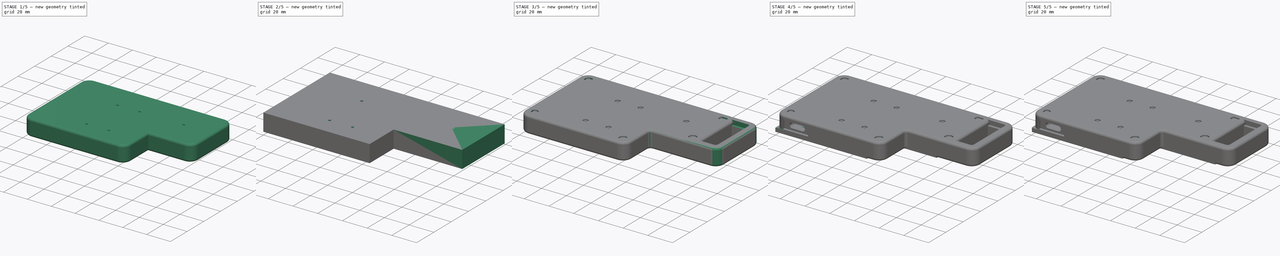
[diagram: build sequence overview — one tinted view per stage of 5, left to right]
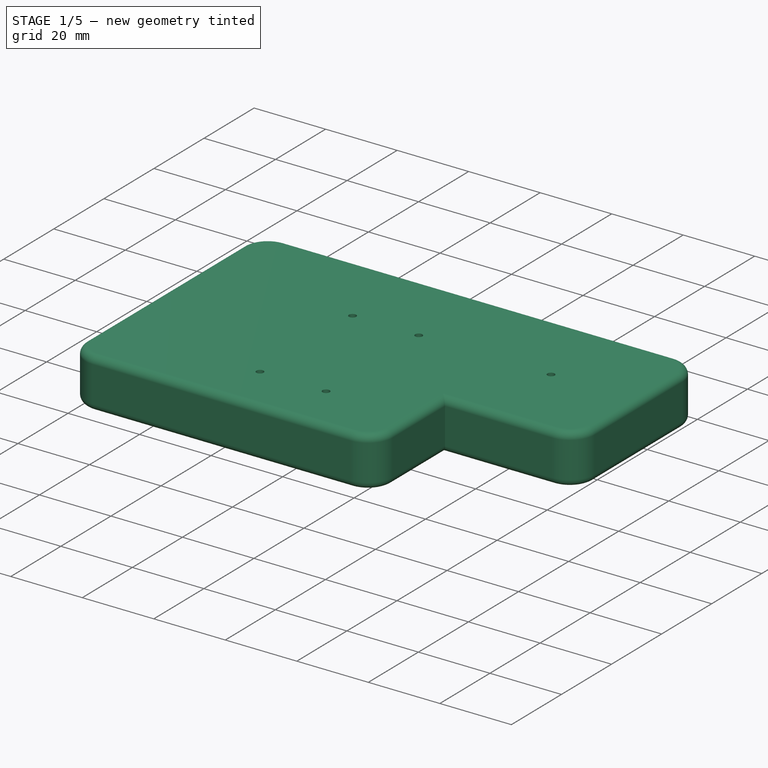
[diagram: stage 1 of 5 — iso view after this stage's code; geometry added in this stage tinted green]
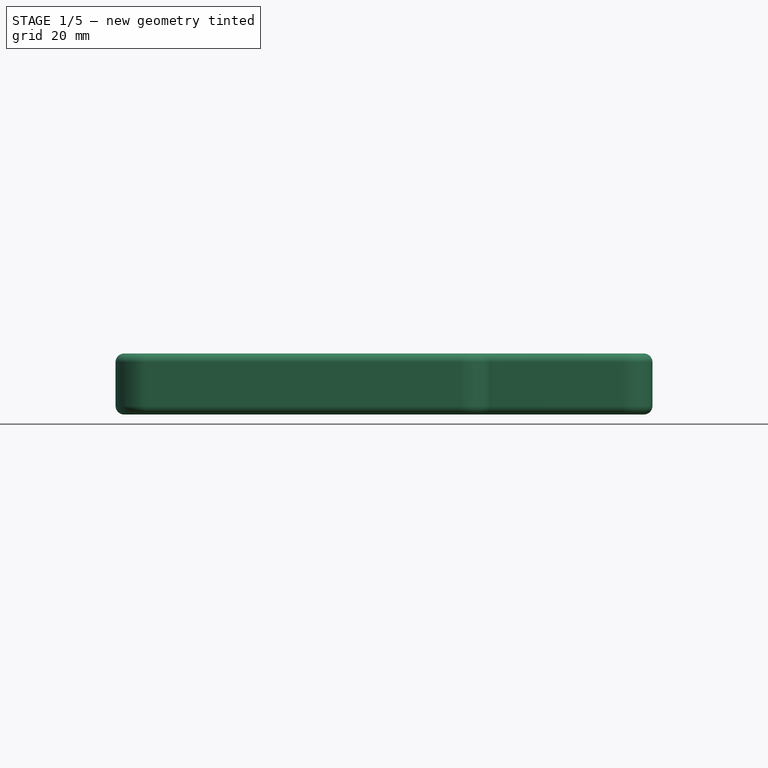
[diagram: stage 1 of 5 — front view after this stage's code; geometry added in this stage tinted green]
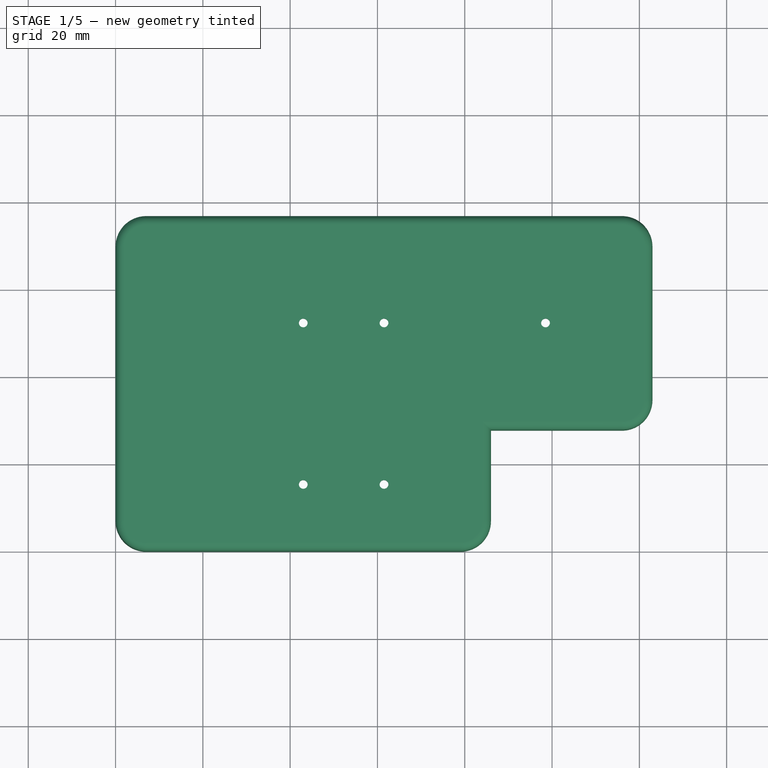
[diagram: stage 1 of 5 — top view after this stage's code; geometry added in this stage tinted green]
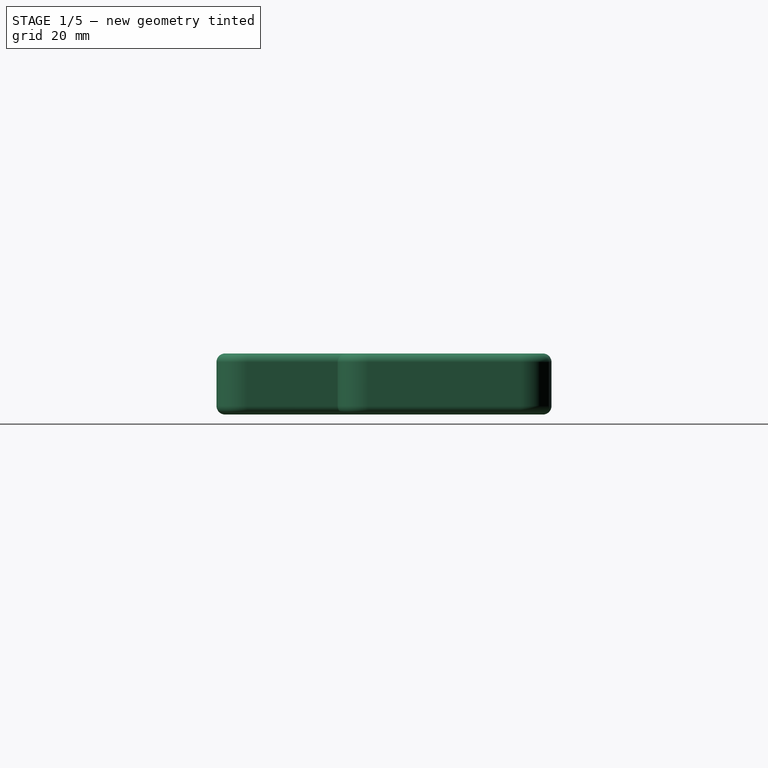
[diagram: stage 1 of 5 — right view after this stage's code; geometry added in this stage tinted green]
FCSTD DOCUMENT  (FreeCAD 0.19R)
Label: StenoSplit
License: All rights reserved
LicenseURL: http://en.wikipedia.org/wiki/All_rights_reserved
objects: Sketcher::SketchObject×18, PartDesign::Pocket×14, PartDesign::Fillet×7, PartDesign::Pad×4, PartDesign::Body×4
note: 72 computed .brp shape members not serialized (recipe doc carries the construction recipe); baked Part::Feature solids carry a one-line shape summary decoded from their .brp

FEATURE [Sketcher::SketchObject] Sketch005
  FullyConstrained = true
  MapMode = 5
  Support = -> [XY_Plane003]
  sketch-geometry (18):
    g0: LineSegment StartX=0 StartY=76.75 StartZ=0 EndX=0 EndY=0 EndZ=0
    g1: LineSegment StartX=0 StartY=0 StartZ=0 EndX=86 EndY=0 EndZ=0
    g2: LineSegment StartX=86 StartY=0 StartZ=0 EndX=86 EndY=27.75 EndZ=0
    g3: LineSegment StartX=86 StartY=27.75 StartZ=0 EndX=123 EndY=27.75 EndZ=0
    g4: LineSegment StartX=123 StartY=27.75 StartZ=0 EndX=123 EndY=76.75 EndZ=0
    g5: LineSegment StartX=123 StartY=76.75 StartZ=0 EndX=0 EndY=76.75 EndZ=0
    g6: Circle CenterX=98.5 CenterY=52.25 CenterZ=0 NormalX=0 NormalY=0 NormalZ=1 AngleXU=0 Radius=1
    g7: Circle CenterX=61.5 CenterY=52.25 CenterZ=0 NormalX=0 NormalY=0 NormalZ=1 AngleXU=0 Radius=1
    g8: Circle CenterX=43 CenterY=52.25 CenterZ=0 NormalX=0 NormalY=0 NormalZ=1 AngleXU=0 Radius=1
    g9: Circle CenterX=43 CenterY=15.25 CenterZ=0 NormalX=0 NormalY=0 NormalZ=1 AngleXU=0 Radius=1
    g10: Circle CenterX=61.5 CenterY=15.25 CenterZ=0 NormalX=0 NormalY=0 NormalZ=1 AngleXU=0 Radius=1
    g11: LineSegment StartX=43 StartY=52.25 StartZ=0 EndX=61.5 EndY=52.25 EndZ=0
    g12: LineSegment StartX=61.5 StartY=52.25 StartZ=0 EndX=98.5 EndY=52.25 EndZ=0
    g13: LineSegment StartX=43 StartY=15.25 StartZ=0 EndX=61.5 EndY=15.25 EndZ=0
    g14: LineSegment StartX=98.5 StartY=52.25 StartZ=0 EndX=123 EndY=27.75 EndZ=0
    g15: LineSegment StartX=98.5 StartY=52.25 StartZ=0 EndX=123 EndY=76.75 EndZ=0
    g16: LineSegment StartX=43 StartY=52.25 StartZ=0 EndX=43 EndY=15.25 EndZ=0
    g17: LineSegment StartX=98.5 StartY=52.25 StartZ=0 EndX=123 EndY=52.25 EndZ=0
  constraints (47):
    c: Vertical(g0)
    c: Coincident(g1,g0)
    c: Horizontal(g1)
    c: Coincident(g2,g1)
    c: Vertical(g2)
    c: Coincident(g3,g2)
    c: Horizontal(g3)
    c: Coincident(g4,g3)
    c: Vertical(g4)
    c: Coincident(g5,g4)
    c: Coincident(g5,g0)
    c: Horizontal(g5)
    c: DistanceY(g0,g0) = 76.75
    c: DistanceX(g5,g5) = 123
    c: DistanceY(g4,g4) = 49
    c: DistanceX(g1,g1) = 86
    c: Equal(g9,g8)
    c: Equal(g8,g10)
    c: Equal(g10,g7)
    c: Equal(g7,g6)
    c: Radius(g10) = 1
    c: Horizontal(g9,g10)
    c: Horizontal(g8,g7)
    c: Horizontal(g7,g6)
    c: Coincident(g11,g8)
    c: Coincident(g11,g7)
    c: Coincident(g12,g7)
    c: Coincident(g12,g6)
    c: DistanceX(g11,g11) = 18.5
    c: Vertical(g9,g8)
    c: Coincident(g13,g9)
    c: Coincident(g13,g10)
    c: DistanceX(g13,g13) = 18.5
    c: Coincident(g14,g6)
    c: Coincident(g14,g3)
    c: Coincident(g15,g6)
    c: Coincident(g15,g4)
    c: Equal(g15,g14)
    c: Coincident(g16,g8)
    c: Coincident(g16,g9)
    c: Coincident(g17,g6)
    c: PointOnObject(g17,g4)
    c: Horizontal(g17)
    c: DistanceX(g17,g17) = 24.5
    c: Coincident(g0,g-1)
    c: DistanceY(g16,g16) = 37
    c: Equal(g12,g16)
FEATURE [PartDesign::Pad] Pad003
  Direction = (1,1,1)
  Length = 14
  Length2 = 100
  Profile = -> Sketch005
  Type = 0
FEATURE [PartDesign::Body] Body002  label="Right_case"
  Group = -> [Sketch004,Pad002,Sketch006,Pocket002,Sketch007,Pocket003,Fillet002,Fillet003,Fillet004,Sketch008,Pocket004,Sketch009,Pocket005,Sketch010,Pocket006,Sketch011,Pocket007]
  Origin = -> Origin002
  Tip = -> Pocket007
FEATURE [Sketcher::SketchObject] Sketch012
  ExternalGeometry = -> [Pad003]
  FullyConstrained = true
  MapMode = 5
  Placement = pos=(0,0,0) rot=(1,0,0;3.14159rad)
  Support = -> [Pad003]
  sketch-geometry (11):
    g0: LineSegment StartX=118 StartY=-71.75 StartZ=0 EndX=118 EndY=-32.75 EndZ=0
    g1: LineSegment StartX=118 StartY=-32.75 StartZ=0 EndX=81 EndY=-32.75 EndZ=0
    g2: LineSegment StartX=81 StartY=-32.75 StartZ=0 EndX=81 EndY=-5 EndZ=0
    g3: LineSegment StartX=81 StartY=-5 StartZ=0 EndX=5 EndY=-5 EndZ=0
    g4: LineSegment StartX=5 StartY=-5 StartZ=0 EndX=5 EndY=-71.75 EndZ=0
    g5: LineSegment StartX=5 StartY=-71.75 StartZ=0 EndX=118 EndY=-71.75 EndZ=0
    g6: LineSegment StartX=123 StartY=-76.75 StartZ=0 EndX=118 EndY=-71.75 EndZ=0
    g7: LineSegment StartX=5 StartY=-71.75 StartZ=0 EndX=0 EndY=-76.75 EndZ=0
    g8: LineSegment StartX=5 StartY=-5 StartZ=0 EndX=0 EndY=0 EndZ=0
    g9: LineSegment StartX=86 StartY=-27.75 StartZ=0 EndX=81 EndY=-32.75 EndZ=0
    g10: LineSegment StartX=123 StartY=-27.75 StartZ=0 EndX=118 EndY=-32.75 EndZ=0
  constraints (28):
    c: Vertical(g0)
    c: Coincident(g1,g0)
    c: Horizontal(g1)
    c: Coincident(g2,g1)
    c: Vertical(g2)
    c: Coincident(g3,g2)
    c: Horizontal(g3)
    c: Coincident(g4,g3)
    c: Vertical(g4)
    c: Coincident(g5,g4)
    c: Coincident(g5,g0)
    c: Horizontal(g5)
    c: Coincident(g6,g-3)
    c: Coincident(g6,g0)
    c: Coincident(g7,g4)
    c: Coincident(g7,g-3)
    c: Coincident(g8,g3)
    c: Coincident(g8,g-1)
    c: Coincident(g9,g-4)
    c: Coincident(g9,g1)
    c: Equal(g6,g9)
    c: Equal(g9,g8)
    c: Equal(g8,g7)
    c: DistanceX(g5,g5) = 113
    c: DistanceY(g4,g4) = 66.75
    c: Coincident(g10,g-5)
    c: Coincident(g10,g0)
    c: Equal(g10,g9)
FEATURE [PartDesign::Pocket] Pocket008
  BaseFeature = -> Pad003
  Length = 3.5
  Length2 = 100
  Profile = -> Sketch012
  Type = 0
FEATURE [Sketcher::SketchObject] Sketch013
  ExternalGeometry = -> [Pocket008]
  FullyConstrained = true
  MapMode = 5
  Placement = pos=(0,0,3.5) rot=(1,0,0;3.14159rad)
  Support = -> [Pocket008]
  sketch-geometry (11):
    g0: LineSegment StartX=116 StartY=-69.75 StartZ=0 EndX=116 EndY=-34.75 EndZ=0
    g1: LineSegment StartX=116 StartY=-34.75 StartZ=0 EndX=79 EndY=-34.75 EndZ=0
    g2: LineSegment StartX=79 StartY=-34.75 StartZ=0 EndX=79 EndY=-7 EndZ=0
    g3: LineSegment StartX=79 StartY=-7 StartZ=0 EndX=7 EndY=-7 EndZ=0
    g4: LineSegment StartX=7 StartY=-7 StartZ=0 EndX=7 EndY=-69.75 EndZ=0
    g5: LineSegment StartX=7 StartY=-69.75 StartZ=0 EndX=116 EndY=-69.75 EndZ=0
    g6: LineSegment StartX=118 StartY=-71.75 StartZ=0 EndX=116 EndY=-69.75 EndZ=0
    g7: LineSegment StartX=5 StartY=-71.75 StartZ=0 EndX=7 EndY=-69.75 EndZ=0
    g8: LineSegment StartX=7 StartY=-7 StartZ=0 EndX=5 EndY=-5 EndZ=0
    g9: LineSegment StartX=81 StartY=-32.75 StartZ=0 EndX=79 EndY=-34.75 EndZ=0
    g10: LineSegment StartX=118 StartY=-32.75 StartZ=0 EndX=116 EndY=-34.75 EndZ=0
  constraints (28):
    c: Vertical(g0)
    c: Coincident(g1,g0)
    c: Horizontal(g1)
    c: Coincident(g2,g1)
    c: Vertical(g2)
    c: Horizontal(g3)
    c: Coincident(g4,g3)
    c: Vertical(g4)
    c: Coincident(g5,g0)
    c: Horizontal(g5)
    c: Coincident(g4,g5)
    c: Coincident(g6,g-3)
    c: Coincident(g6,g0)
    c: Coincident(g7,g-4)
    c: Coincident(g7,g4)
    c: Coincident(g8,g3)
    c: Coincident(g8,g-5)
    c: Coincident(g9,g-6)
    c: Coincident(g9,g1)
    c: Coincident(g10,g-7)
    c: Coincident(g10,g0)
    c: Equal(g6,g10)
    c: Equal(g10,g9)
    c: Equal(g9,g8)
    c: Equal(g8,g7)
    c: DistanceX(g5,g5) = 109
    c: DistanceY(g4,g4) = 62.75
    c: Coincident(g2,g3)
FEATURE [PartDesign::Pocket] Pocket009
  BaseFeature = -> Pocket008
  Length = 7.5
  Length2 = 100
  Profile = -> Sketch013
  Type = 0
FEATURE [PartDesign::Fillet] Fillet005
  Base = -> Pocket009 [Edge28,Edge8,Edge2,Edge1,Edge5]
  BaseFeature = -> Pocket009
  Radius = 7
  SupportTransform = false
FEATURE [PartDesign::Fillet] Fillet006
  Base = -> Fillet005 [Edge14,Edge32,Edge84,Edge45,Edge83,Edge48,Edge81,Edge52,Edge82,Edge50,Edge80,Edge54,Edge46,Edge79]
  BaseFeature = -> Fillet005
  Radius = 2
  SupportTransform = false
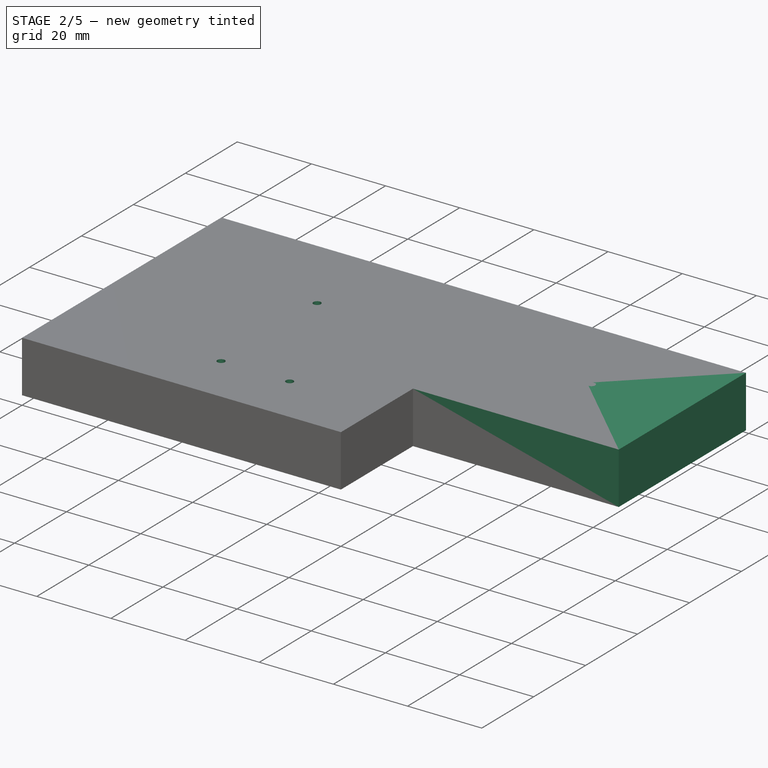
[diagram: stage 2 of 5 — iso view after this stage's code; geometry added in this stage tinted green]
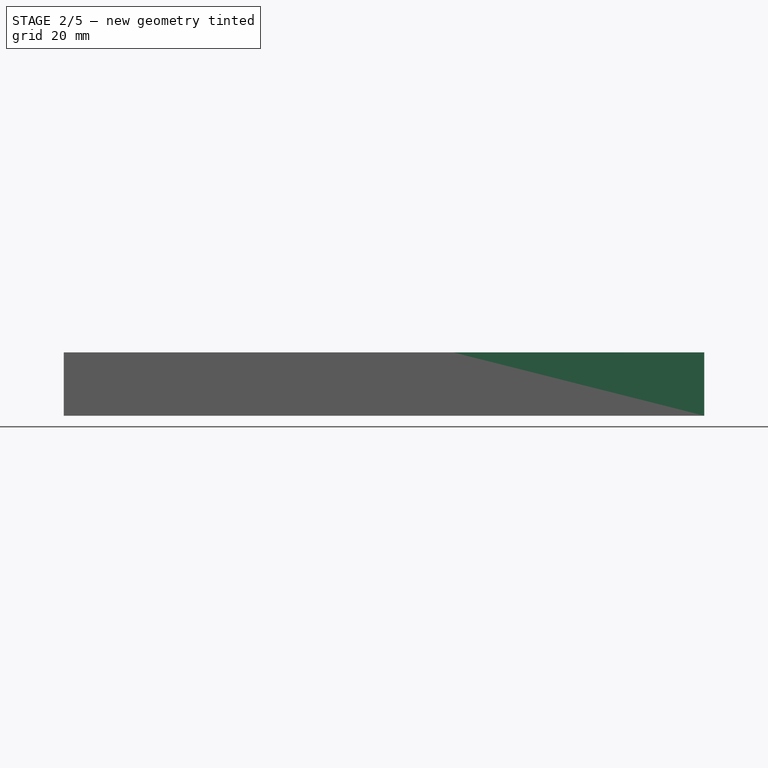
[diagram: stage 2 of 5 — front view after this stage's code; geometry added in this stage tinted green]
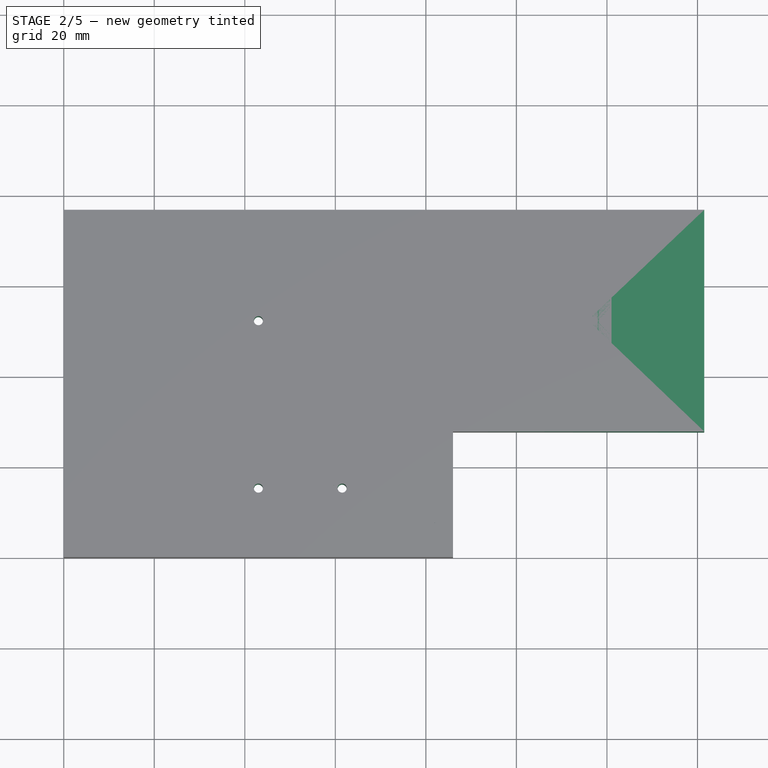
[diagram: stage 2 of 5 — top view after this stage's code; geometry added in this stage tinted green]
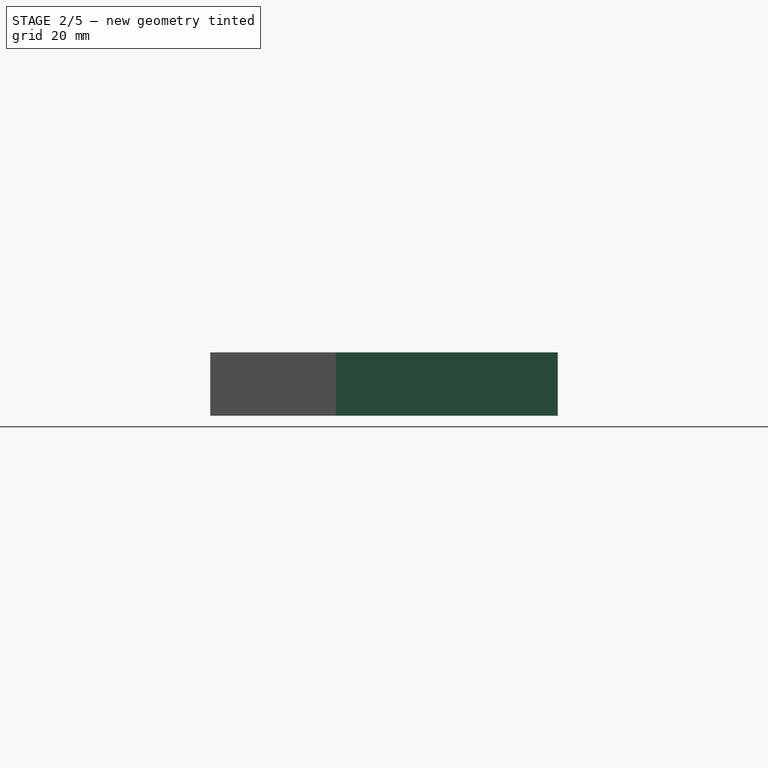
[diagram: stage 2 of 5 — right view after this stage's code; geometry added in this stage tinted green]
FEATURE [PartDesign::Body] Body001  label="Left_plate"
  Group = -> [Sketch001,Pad001,Fillet001,Sketch003,Pocket001]
  Origin = -> Origin001
  Placement = pos=(6,6,0) rot=(0,0,1;0rad)
  Tip = -> Pocket001
FEATURE [Sketcher::SketchObject] Sketch004
  FullyConstrained = true
  MapMode = 5
  Support = -> [XY_Plane002]
  sketch-geometry (18):
    g0: LineSegment StartX=0 StartY=76.75 StartZ=0 EndX=0 EndY=0 EndZ=0
    g1: LineSegment StartX=0 StartY=0 StartZ=0 EndX=86 EndY=0 EndZ=0
    g2: LineSegment StartX=86 StartY=0 StartZ=0 EndX=86 EndY=27.75 EndZ=0
    g3: LineSegment StartX=86 StartY=27.75 StartZ=0 EndX=141.5 EndY=27.75 EndZ=0
    g4: LineSegment StartX=141.5 StartY=27.75 StartZ=0 EndX=141.5 EndY=76.75 EndZ=0
    g5: LineSegment StartX=141.5 StartY=76.75 StartZ=0 EndX=0 EndY=76.75 EndZ=0
    g6: Circle CenterX=117 CenterY=52.25 CenterZ=0 NormalX=0 NormalY=0 NormalZ=1 AngleXU=0 Radius=1
    g7: Circle CenterX=80 CenterY=52.25 CenterZ=0 NormalX=0 NormalY=0 NormalZ=1 AngleXU=0 Radius=1
    g8: Circle CenterX=43 CenterY=52.25 CenterZ=0 NormalX=0 NormalY=0 NormalZ=1 AngleXU=0 Radius=1
    g9: Circle CenterX=43 CenterY=15.25 CenterZ=0 NormalX=0 NormalY=0 NormalZ=1 AngleXU=0 Radius=1
    g10: Circle CenterX=61.5 CenterY=15.25 CenterZ=0 NormalX=0 NormalY=0 NormalZ=1 AngleXU=0 Radius=1
    g11: LineSegment StartX=43 StartY=52.25 StartZ=0 EndX=80 EndY=52.25 EndZ=0
    g12: LineSegment StartX=80 StartY=52.25 StartZ=0 EndX=117 EndY=52.25 EndZ=0
    g13: LineSegment StartX=43 StartY=15.25 StartZ=0 EndX=61.5 EndY=15.25 EndZ=0
    g14: LineSegment StartX=117 StartY=52.25 StartZ=0 EndX=141.5 EndY=27.75 EndZ=0
    g15: LineSegment StartX=117 StartY=52.25 StartZ=0 EndX=141.5 EndY=76.75 EndZ=0
    g16: LineSegment StartX=43 StartY=52.25 StartZ=0 EndX=43 EndY=15.25 EndZ=0
    g17: LineSegment StartX=117 StartY=52.25 StartZ=0 EndX=141.5 EndY=52.25 EndZ=0
  constraints (47):
    c: Vertical(g0)
    c: Coincident(g1,g0)
    c: Horizontal(g1)
    c: Coincident(g2,g1)
    c: Vertical(g2)
    c: Coincident(g3,g2)
    c: Horizontal(g3)
    c: Coincident(g4,g3)
    c: Vertical(g4)
    c: Coincident(g5,g4)
    c: Coincident(g5,g0)
    c: Horizontal(g5)
    c: DistanceY(g0,g0) = 76.75
    c: DistanceX(g5,g5) = 141.5
    c: DistanceY(g4,g4) = 49
    c: DistanceX(g1,g1) = 86
    c: Equal(g9,g8)
    c: Equal(g8,g10)
    c: Equal(g10,g7)
    c: Equal(g7,g6)
    c: Radius(g10) = 1
    c: Horizontal(g9,g10)
    c: Horizontal(g8,g7)
    c: Horizontal(g7,g6)
    c: Coincident(g11,g8)
    c: Coincident(g11,g7)
    c: Coincident(g12,g7)
    c: Coincident(g12,g6)
    c: Equal(g11,g12)
    c: DistanceX(g11,g11) = 37
    c: Vertical(g9,g8)
    c: Coincident(g13,g9)
    c: Coincident(g13,g10)
    c: DistanceX(g13,g13) = 18.5
    c: Coincident(g14,g6)
    c: Coincident(g14,g3)
    c: Coincident(g15,g6)
    c: Coincident(g15,g4)
    c: Equal(g15,g14)
    c: Coincident(g16,g8)
    c: Coincident(g16,g9)
    c: Equal(g16,g11)
    c: Coincident(g17,g6)
    c: PointOnObject(g17,g4)
    c: Horizontal(g17)
    c: DistanceX(g17,g17) = 24.5
    c: Coincident(g0,g-1)
FEATURE [PartDesign::Pad] Pad002
  Direction = (1,1,1)
  Length = 14
  Length2 = 100
  Profile = -> Sketch004
  Type = 0
FEATURE [Sketcher::SketchObject] Sketch014
  ExternalGeometry = -> [Fillet006]
  FullyConstrained = true
  MapMode = 5
  Placement = pos=(0,0,14) rot=(0,0,1;0rad)
  Support = -> [Fillet006]
  sketch-geometry (10):
    g0: Circle CenterX=43 CenterY=52.25 CenterZ=0 NormalX=0 NormalY=0 NormalZ=1 AngleXU=0 Radius=2
    g1: Circle CenterX=61.5 CenterY=52.25 CenterZ=0 NormalX=0 NormalY=0 NormalZ=1 AngleXU=0 Radius=2
    g2: Circle CenterX=98.5 CenterY=52.25 CenterZ=0 NormalX=0 NormalY=0 NormalZ=1 AngleXU=0 Radius=2
    g3: Circle CenterX=61.5 CenterY=15.25 CenterZ=0 NormalX=0 NormalY=0 NormalZ=1 AngleXU=0 Radius=2
    g4: Circle CenterX=43 CenterY=15.25 CenterZ=0 NormalX=0 NormalY=0 NormalZ=1 AngleXU=0 Radius=2
    g5: Circle CenterX=79 CenterY=7 CenterZ=0 NormalX=0 NormalY=0 NormalZ=1 AngleXU=0 Radius=3
    g6: Circle CenterX=7 CenterY=7 CenterZ=0 NormalX=0 NormalY=0 NormalZ=1 AngleXU=0 Radius=3
    g7: Circle CenterX=7 CenterY=69.75 CenterZ=0 NormalX=0 NormalY=0 NormalZ=1 AngleXU=0 Radius=3
    g8: Circle CenterX=116 CenterY=69.75 CenterZ=0 NormalX=0 NormalY=0 NormalZ=1 AngleXU=0 Radius=3
    g9: Circle CenterX=116 CenterY=34.75 CenterZ=0 NormalX=0 NormalY=0 NormalZ=1 AngleXU=0 Radius=3
  constraints (20):
    c: Coincident(g0,g-5)
    c: Coincident(g1,g-6)
    c: Coincident(g2,g-7)
    c: Coincident(g3,g-4)
    c: Coincident(g4,g-3)
    c: Coincident(g5,g-12)
    c: Coincident(g6,g-11)
    c: Coincident(g7,g-8)
    c: Coincident(g8,g-9)
    c: Coincident(g9,g-10)
    c: Equal(g0,g1)
    c: Equal(g1,g2)
    c: Equal(g2,g3)
    c: Equal(g3,g4)
    c: Equal(g6,g5)
    c: Equal(g5,g9)
    c: Equal(g9,g8)
    c: Equal(g8,g7)
    c: Diameter(g0) = 4
    c: Diameter(g9) = 6
FEATURE [PartDesign::Pocket] Pocket010
  BaseFeature = -> Fillet006
  Length = 1
  Length2 = 100
  Profile = -> Sketch014
  Type = 0
FEATURE [Sketcher::SketchObject] Sketch015
  ExternalGeometry = -> [Pocket010]
  FullyConstrained = true
  MapMode = 5
  Placement = pos=(0,0,0) rot=(1,0,0;1.5708rad)
  Support = -> [Pocket010]
  sketch-geometry (7):
    g0: LineSegment StartX=6 StartY=10.5 StartZ=0 EndX=6 EndY=3.5 EndZ=0
    g1: LineSegment StartX=6 StartY=3.5 StartZ=0 EndX=26.5 EndY=3.5 EndZ=0
    g2: LineSegment StartX=26.5 StartY=3.5 StartZ=0 EndX=26.5 EndY=10.5 EndZ=0
    g3: LineSegment StartX=26.5 StartY=10.5 StartZ=0 EndX=6 EndY=10.5 EndZ=0
    g4: LineSegment StartX=-9e-16 StartY=12 StartZ=0 EndX=6 EndY=10.5 EndZ=0
    g5: LineSegment StartX=-9e-16 StartY=2 StartZ=0 EndX=6 EndY=3.5 EndZ=0
    g6: LineSegment StartX=-9e-16 StartY=10.5 StartZ=0 EndX=6 EndY=10.5 EndZ=0
  constraints (19):
    c: Vertical(g0)
    c: Coincident(g1,g0)
    c: Horizontal(g1)
    c: Coincident(g2,g1)
    c: Vertical(g2)
    c: Coincident(g3,g2)
    c: Coincident(g3,g0)
    c: Horizontal(g3)
    c: DistanceX(g3,g3) = 20.5
    c: DistanceY(g0,g0) = 7
    c: Coincident(g4,g-3)
    c: Coincident(g4,g0)
    c: Coincident(g5,g-3)
    c: Coincident(g5,g0)
    c: Equal(g5,g4)
    c: PointOnObject(g6,g-3)
    c: Coincident(g6,g0)
    c: Horizontal(g6)
    c: DistanceX(g6,g6) = 6
FEATURE [PartDesign::Pocket] Pocket011
  BaseFeature = -> Pocket010
  Length = 2
  Length2 = 100
  Profile = -> Sketch015
  Type = 0
FEATURE [Sketcher::SketchObject] Sketch016
  ExternalGeometry = -> [Pocket011]
  FullyConstrained = true
  MapMode = 5
  Placement = pos=(0,2,-4e-16) rot=(1,0,0;1.5708rad)
  Support = -> [Pocket011]
  sketch-geometry (7):
    g0: ArcOfCircle CenterX=12 CenterY=7 CenterZ=0 NormalX=0 NormalY=0 NormalZ=1 AngleXU=0 Radius=2 StartAngle=1.5708 EndAngle=4.71239
    g1: ArcOfCircle CenterX=20.5 CenterY=7 CenterZ=0 NormalX=0 NormalY=0 NormalZ=1 AngleXU=0 Radius=2 StartAngle=4.71239 EndAngle=7.85398
    g2: LineSegment StartX=12 StartY=9 StartZ=0 EndX=20.5 EndY=9 EndZ=0
    g3: LineSegment StartX=12 StartY=5 StartZ=0 EndX=20.5 EndY=5 EndZ=0
    g4: LineSegment StartX=6 StartY=10.5 StartZ=0 EndX=12 EndY=7 EndZ=0
    g5: LineSegment StartX=20.5 StartY=7 StartZ=0 EndX=26.5 EndY=10.5 EndZ=0
    g6: LineSegment StartX=20.5 StartY=7 StartZ=0 EndX=26.5 EndY=3.5 EndZ=0
  constraints (20):
    c: Vertical(g0,g0)
    c: Vertical(g0,g0)
    c: Vertical(g1,g1)
    c: Vertical(g1,g1)
    c: Coincident(g2,g0)
    c: Coincident(g2,g1)
    c: Horizontal(g2)
    c: Coincident(g3,g0)
    c: Coincident(g3,g1)
    c: Horizontal(g3)
    c: DistanceX(g0,g1) = 8.5
    c: DistanceY(g1,g1) = 4
    c: Coincident(g4,g-3)
    c: Coincident(g4,g0)
    c: Coincident(g5,g1)
    c: Coincident(g5,g-4)
    c: Coincident(g6,g1)
    c: Coincident(g6,g-4)
    c: Equal(g6,g5)
    c: Equal(g5,g4)
FEATURE [PartDesign::Pocket] Pocket012
  BaseFeature = -> Pocket011
  Length = 5
  Length2 = 100
  Profile = -> Sketch016
  Type = 0
FEATURE [Sketcher::SketchObject] Sketch017
  ExternalGeometry = -> [Pocket012]
  FullyConstrained = true
  MapMode = 5
  Placement = pos=(0,76.75,0) rot=(0,0.707107,0.707107;3.14159rad)
  Support = -> [Pocket012]
  sketch-geometry (4):
    g0: LineSegment StartX=-7 StartY=3 StartZ=0 EndX=-21.5 EndY=3 EndZ=0
    g1: LineSegment StartX=-21.5 StartY=3 StartZ=0 EndX=-21.5 EndY=12 EndZ=0
    g2: LineSegment StartX=-21.5 StartY=12 StartZ=0 EndX=-7 EndY=12 EndZ=0
    g3: LineSegment StartX=-7 StartY=12 StartZ=0 EndX=-7 EndY=3 EndZ=0
  constraints (11):
    c: Horizontal(g0)
    c: Coincident(g1,g0)
    c: Vertical(g1)
    c: Coincident(g2,g1)
    c: Horizontal(g2)
    c: Coincident(g3,g2)
    c: Coincident(g3,g0)
    c: Vertical(g3)
    c: DistanceX(g2,g2) = 14.5
    c: DistanceY(g3,g3) = 9
    c: Coincident(g2,g-3)
FEATURE [PartDesign::Pocket] Pocket013
  BaseFeature = -> Pocket012
  Length = 10
  Length2 = 100
  Profile = -> Sketch017
  Type = 0
FEATURE [PartDesign::Body] Body003  label="Left_case"
  Group = -> [Sketch005,Pad003,Sketch012,Pocket008,Sketch013,Pocket009,Fillet005,Fillet006,Sketch014,Pocket010,Sketch015,Pocket011,Sketch016,Pocket012,Sketch017,Pocket013]
  Origin = -> Origin003
  Tip = -> Pocket013
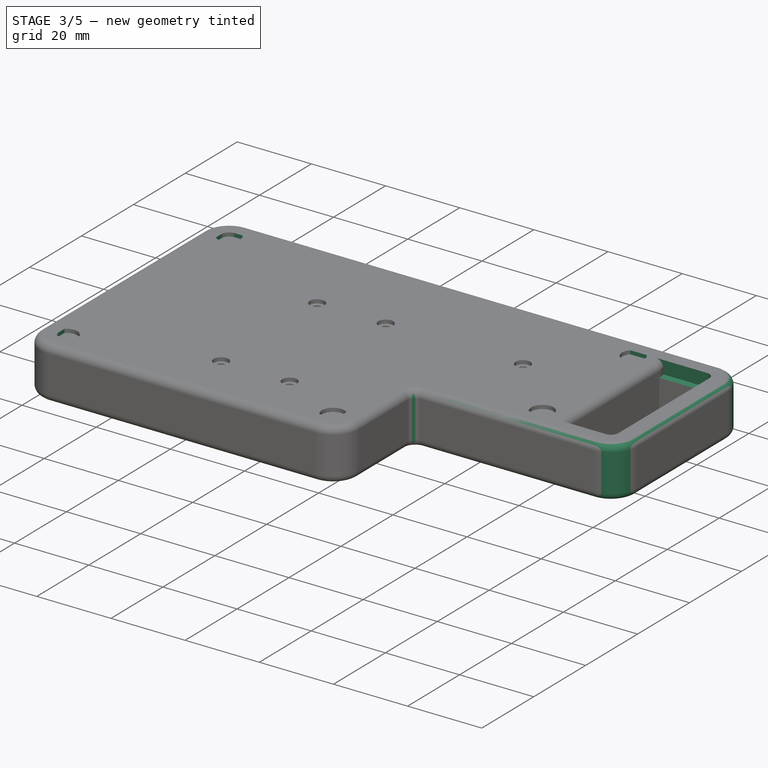
[diagram: stage 3 of 5 — iso view after this stage's code; geometry added in this stage tinted green]
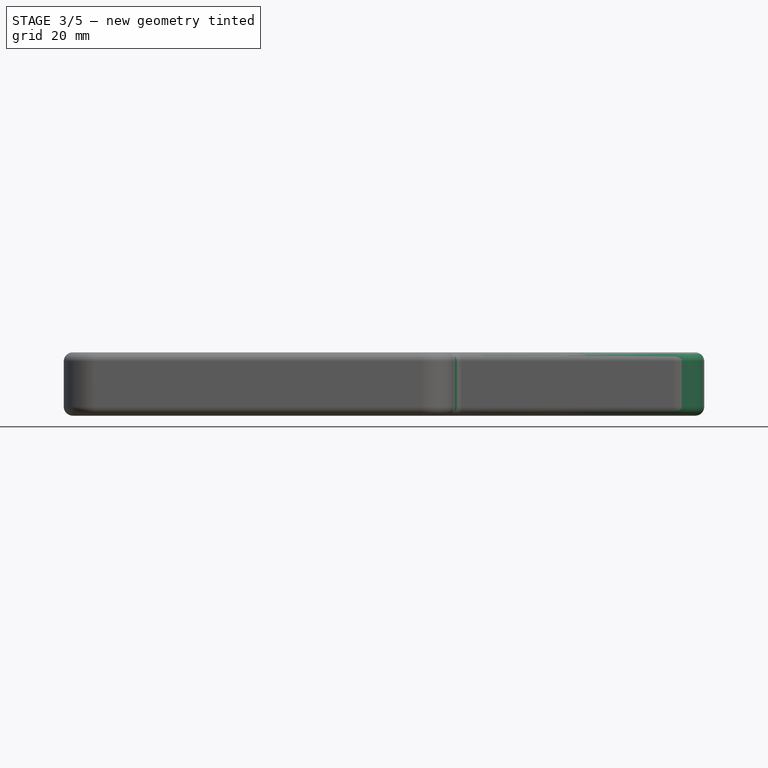
[diagram: stage 3 of 5 — front view after this stage's code; geometry added in this stage tinted green]
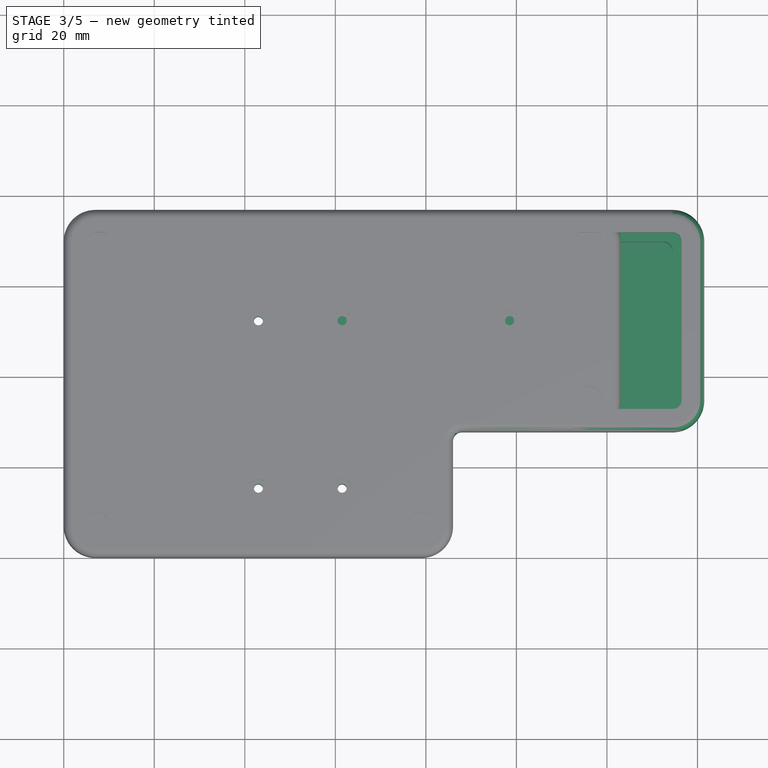
[diagram: stage 3 of 5 — top view after this stage's code; geometry added in this stage tinted green]
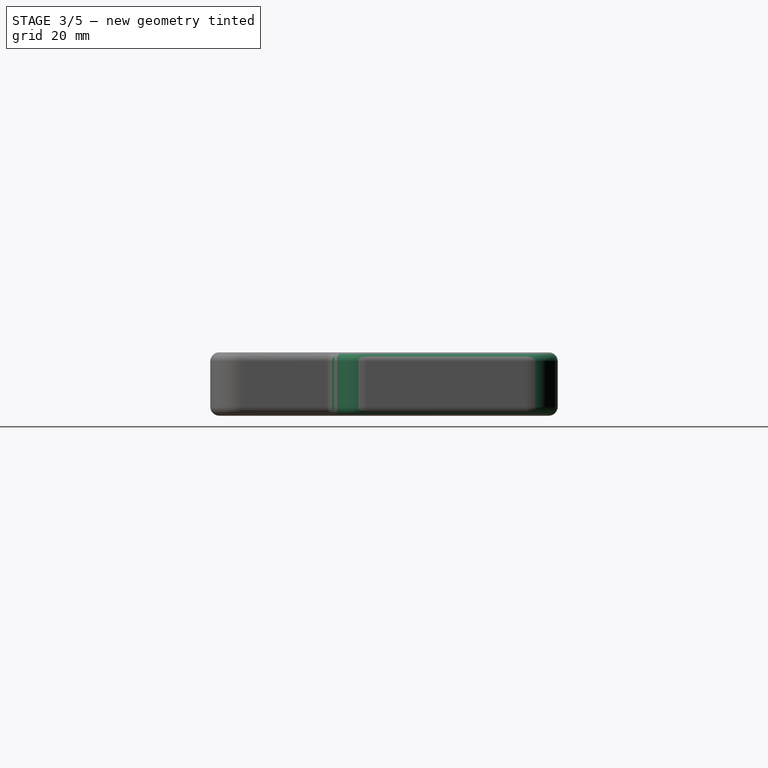
[diagram: stage 3 of 5 — right view after this stage's code; geometry added in this stage tinted green]
FEATURE [Sketcher::SketchObject] Sketch006
  ExternalGeometry = -> [Pad002]
  FullyConstrained = true
  MapMode = 5
  Placement = pos=(0,0,14) rot=(0,0,1;0rad)
  Support = -> [Pad002]
  sketch-geometry (9):
    g0: LineSegment StartX=5 StartY=71.75 StartZ=0 EndX=5 EndY=5 EndZ=0
    g1: LineSegment StartX=5 StartY=5 StartZ=0 EndX=81 EndY=5 EndZ=0
    g2: LineSegment StartX=81 StartY=5 StartZ=0 EndX=81 EndY=32.75 EndZ=0
    g3: LineSegment StartX=81 StartY=32.75 StartZ=0 EndX=136.5 EndY=32.75 EndZ=0
    g4: LineSegment StartX=136.5 StartY=32.75 StartZ=0 EndX=136.5 EndY=71.75 EndZ=0
    g5: LineSegment StartX=136.5 StartY=71.75 StartZ=0 EndX=5 EndY=71.75 EndZ=0
    g6: LineSegment StartX=0 StartY=0 StartZ=0 EndX=5 EndY=5 EndZ=0
    g7: LineSegment StartX=136.5 StartY=32.75 StartZ=0 EndX=141.5 EndY=27.75 EndZ=0
    g8: LineSegment StartX=136.5 StartY=71.75 StartZ=0 EndX=141.5 EndY=76.75 EndZ=0
  constraints (24):
    c: Vertical(g0)
    c: Coincident(g1,g0)
    c: Horizontal(g1)
    c: Vertical(g2)
    c: Coincident(g3,g2)
    c: Horizontal(g3)
    c: Coincident(g4,g3)
    c: Vertical(g4)
    c: Coincident(g5,g4)
    c: Coincident(g5,g0)
    c: Horizontal(g5)
    c: DistanceY(g0,g0) = 66.75
    c: DistanceX(g5,g5) = 131.5
    c: Coincident(g2,g1)
    c: DistanceX(g1,g1) = 76
    c: DistanceY(g4,g4) = 39
    c: Coincident(g6,g-1)
    c: Coincident(g6,g0)
    c: Coincident(g7,g3)
    c: Coincident(g7,g-4)
    c: Coincident(g8,g4)
    c: Coincident(g8,g-5)
    c: Equal(g8,g7)
    c: Equal(g7,g6)
FEATURE [PartDesign::Pocket] Pocket002
  BaseFeature = -> Pad002
  Length = 3.5
  Length2 = 100
  Profile = -> Sketch006
  Type = 0
FEATURE [Sketcher::SketchObject] Sketch007
  ExternalGeometry = -> [Pocket002]
  FullyConstrained = true
  MapMode = 5
  Placement = pos=(0,0,10.5) rot=(0,0,1;0rad)
  Support = -> [Pocket002]
  sketch-geometry (9):
    g0: LineSegment StartX=7 StartY=69.75 StartZ=0 EndX=7 EndY=7 EndZ=0
    g1: LineSegment StartX=7 StartY=7 StartZ=0 EndX=79 EndY=7 EndZ=0
    g2: LineSegment StartX=79 StartY=7 StartZ=0 EndX=79 EndY=34.75 EndZ=0
    g3: LineSegment StartX=79 StartY=34.75 StartZ=0 EndX=134.5 EndY=34.75 EndZ=0
    g4: LineSegment StartX=134.5 StartY=34.75 StartZ=0 EndX=134.5 EndY=69.75 EndZ=0
    g5: LineSegment StartX=134.5 StartY=69.75 StartZ=0 EndX=7 EndY=69.75 EndZ=0
    g6: LineSegment StartX=5 StartY=5 StartZ=0 EndX=7 EndY=7 EndZ=0
    g7: LineSegment StartX=81 StartY=5 StartZ=0 EndX=79 EndY=7 EndZ=0
    g8: LineSegment StartX=136.5 StartY=71.75 StartZ=0 EndX=134.5 EndY=69.75 EndZ=0
  constraints (24):
    c: Vertical(g0)
    c: Coincident(g1,g0)
    c: Horizontal(g1)
    c: Coincident(g2,g1)
    c: Vertical(g2)
    c: Coincident(g3,g2)
    c: Horizontal(g3)
    c: Coincident(g4,g3)
    c: Vertical(g4)
    c: Coincident(g5,g4)
    c: Coincident(g5,g0)
    c: Horizontal(g5)
    c: DistanceY(g0,g0) = 62.75
    c: DistanceX(g5,g5) = 127.5
    c: DistanceY(g4,g4) = 35
    c: DistanceX(g1,g1) = 72
    c: Coincident(g6,g-3)
    c: Coincident(g6,g0)
    c: Coincident(g7,g-4)
    c: Coincident(g7,g1)
    c: Coincident(g8,g-5)
    c: Coincident(g8,g4)
    c: Equal(g8,g7)
    c: Equal(g7,g6)
FEATURE [PartDesign::Pocket] Pocket003
  BaseFeature = -> Pocket002
  Length = 7.5
  Length2 = 100
  Profile = -> Sketch007
  Type = 0
FEATURE [PartDesign::Fillet] Fillet002
  Base = -> Pocket003 [Edge2,Edge8,Edge28,Edge5,Edge1]
  BaseFeature = -> Pocket003
  Radius = 7
  SupportTransform = false
FEATURE [PartDesign::Fillet] Fillet003
  Base = -> Fillet002 [Edge82,Edge58,Edge60,Edge84,Edge83,Edge62,Edge43,Edge79,Edge55,Edge81,Edge64,Edge80,Edge56]
  BaseFeature = -> Fillet002
  Radius = 2
  SupportTransform = false
FEATURE [PartDesign::Fillet] Fillet004
  Base = -> Fillet003 [Edge28,Edge5]
  BaseFeature = -> Fillet003
  Radius = 2
  SupportTransform = false
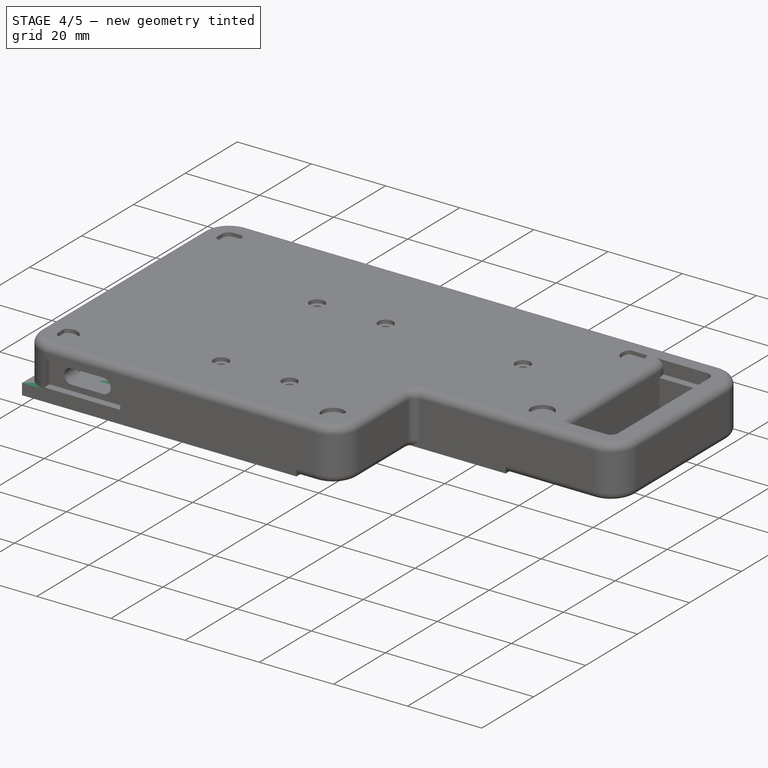
[diagram: stage 4 of 5 — iso view after this stage's code; geometry added in this stage tinted green]
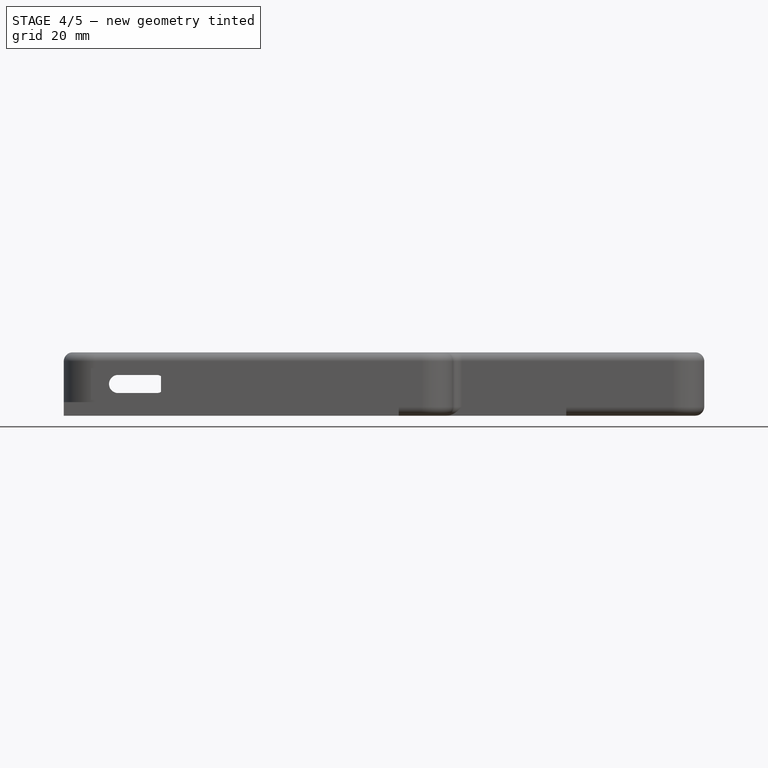
[diagram: stage 4 of 5 — front view after this stage's code; geometry added in this stage tinted green]
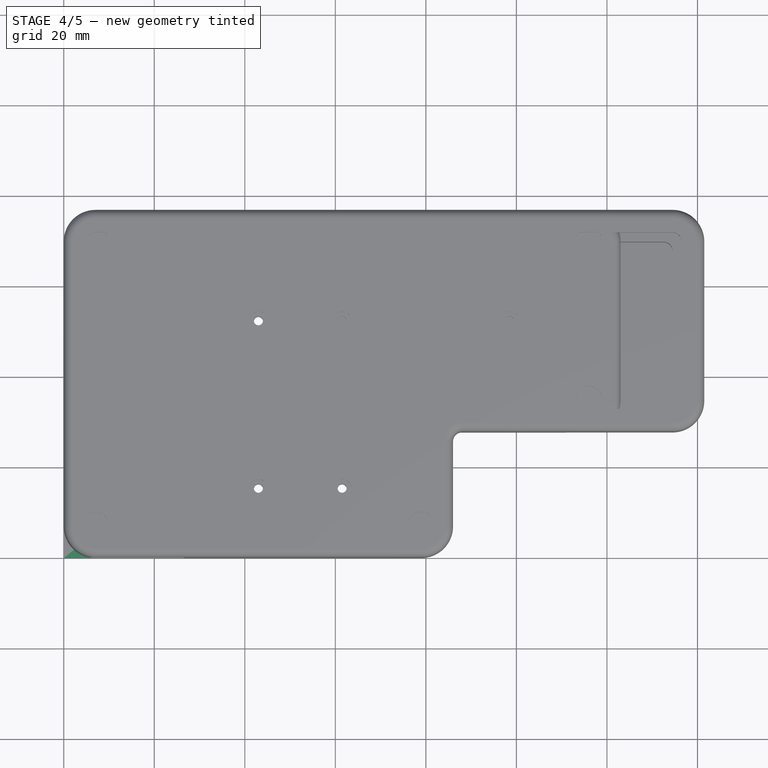
[diagram: stage 4 of 5 — top view after this stage's code; geometry added in this stage tinted green]
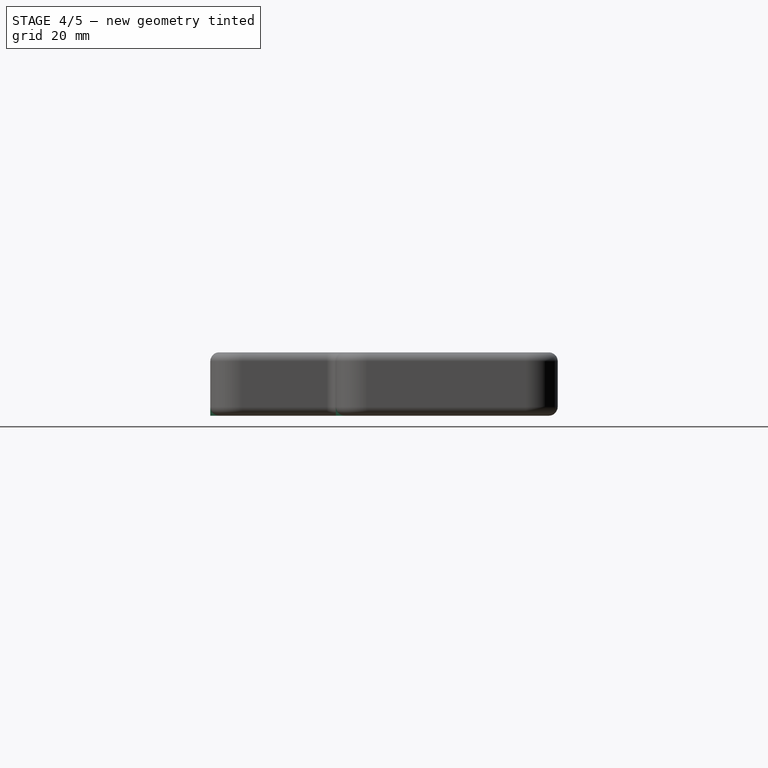
[diagram: stage 4 of 5 — right view after this stage's code; geometry added in this stage tinted green]
FEATURE [Sketcher::SketchObject] Sketch001
  FullyConstrained = true
  MapMode = 5
  Support = -> [XY_Plane001]
  sketch-geometry (91):
    g0: LineSegment StartX=0 StartY=0 StartZ=0 EndX=74 EndY=0 EndZ=0
    g1: LineSegment StartX=0 StartY=0 StartZ=0 EndX=0 EndY=64.75 EndZ=0
    g2: LineSegment StartX=0 StartY=64.75 StartZ=0 EndX=111 EndY=64.75 EndZ=0
    g3: LineSegment StartX=74 StartY=0 StartZ=0 EndX=74 EndY=27.75 EndZ=0
    g4: LineSegment StartX=74 StartY=27.75 StartZ=0 EndX=111 EndY=27.75 EndZ=0
    g5: LineSegment StartX=111 StartY=27.75 StartZ=0 EndX=111 EndY=64.75 EndZ=0
    g6: LineSegment StartX=20.625 StartY=2.125 StartZ=0 EndX=34.875 EndY=2.125 EndZ=0
    g7: LineSegment StartX=34.875 StartY=2.125 StartZ=0 EndX=34.875 EndY=16.375 EndZ=0
    g8: LineSegment StartX=34.875 StartY=16.375 StartZ=0 EndX=20.625 EndY=16.375 EndZ=0
    g9: LineSegment StartX=20.625 StartY=16.375 StartZ=0 EndX=20.625 EndY=2.125 EndZ=0
    g10: LineSegment StartX=39.125 StartY=2.125 StartZ=0 EndX=53.375 EndY=2.125 EndZ=0
    g11: LineSegment StartX=53.375 StartY=2.125 StartZ=0 EndX=53.375 EndY=16.375 EndZ=0
    g12: LineSegment StartX=53.375 StartY=16.375 StartZ=0 EndX=39.125 EndY=16.375 EndZ=0
    g13: LineSegment StartX=39.125 StartY=16.375 StartZ=0 EndX=39.125 EndY=2.125 EndZ=0
    g14: LineSegment StartX=57.625 StartY=2.125 StartZ=0 EndX=71.875 EndY=2.125 EndZ=0
    g15: LineSegment StartX=71.875 StartY=2.125 StartZ=0 EndX=71.875 EndY=16.375 EndZ=0
    g16: LineSegment StartX=71.875 StartY=16.375 StartZ=0 EndX=57.625 EndY=16.375 EndZ=0
    g17: LineSegment StartX=57.625 StartY=16.375 StartZ=0 EndX=57.625 EndY=2.125 EndZ=0
    g18: LineSegment StartX=20.625 StartY=29.875 StartZ=0 EndX=34.875 EndY=29.875 EndZ=0
    g19: LineSegment StartX=34.875 StartY=29.875 StartZ=0 EndX=34.875 EndY=44.125 EndZ=0
    g20: LineSegment StartX=34.875 StartY=44.125 StartZ=0 EndX=20.625 EndY=44.125 EndZ=0
    g21: LineSegment StartX=20.625 StartY=44.125 StartZ=0 EndX=20.625 EndY=29.875 EndZ=0
    g22: LineSegment StartX=39.125 StartY=29.875 StartZ=0 EndX=53.375 EndY=29.875 EndZ=0
    g23: LineSegment StartX=53.375 StartY=29.875 StartZ=0 EndX=53.375 EndY=44.125 EndZ=0
    g24: LineSegment StartX=53.375 StartY=44.125 StartZ=0 EndX=39.125 EndY=44.125 EndZ=0
    g25: LineSegment StartX=39.125 StartY=44.125 StartZ=0 EndX=39.125 EndY=29.875 EndZ=0
    g26: LineSegment StartX=57.625 StartY=29.875 StartZ=0 EndX=71.875 EndY=29.875 EndZ=0
    g27: LineSegment StartX=71.875 StartY=29.875 StartZ=0 EndX=71.875 EndY=44.125 EndZ=0
    g28: LineSegment StartX=71.875 StartY=44.125 StartZ=0 EndX=57.625 EndY=44.125 EndZ=0
    g29: LineSegment StartX=57.625 StartY=44.125 StartZ=0 EndX=57.625 EndY=29.875 EndZ=0
    g30: LineSegment StartX=94.625 StartY=29.875 StartZ=0 EndX=108.875 EndY=29.875 EndZ=0
    g31: LineSegment StartX=108.875 StartY=29.875 StartZ=0 EndX=108.875 EndY=44.125 EndZ=0
    g32: LineSegment StartX=108.875 StartY=44.125 StartZ=0 EndX=94.625 EndY=44.125 EndZ=0
    g33: LineSegment StartX=94.625 StartY=44.125 StartZ=0 EndX=94.625 EndY=29.875 EndZ=0
    g34: LineSegment StartX=94.625 StartY=48.375 StartZ=0 EndX=108.875 EndY=48.375 EndZ=0
    g35: LineSegment StartX=108.875 StartY=48.375 StartZ=0 EndX=108.875 EndY=62.625 EndZ=0
    g36: LineSegment StartX=108.875 StartY=62.625 StartZ=0 EndX=94.625 EndY=62.625 EndZ=0
    g37: LineSegment StartX=94.625 StartY=62.625 StartZ=0 EndX=94.625 EndY=48.375 EndZ=0
    g38: LineSegment StartX=20.625 StartY=62.625 StartZ=0 EndX=34.875 EndY=62.625 EndZ=0
    g39: LineSegment StartX=34.875 StartY=62.625 StartZ=0 EndX=34.875 EndY=48.375 EndZ=0
    g40: LineSegment StartX=34.875 StartY=48.375 StartZ=0 EndX=20.625 EndY=48.375 EndZ=0
    g41: LineSegment StartX=20.625 StartY=48.375 StartZ=0 EndX=20.625 EndY=62.625 EndZ=0
    g42: LineSegment StartX=39.125 StartY=62.625 StartZ=0 EndX=53.375 EndY=62.625 EndZ=0
    g43: LineSegment StartX=53.375 StartY=62.625 StartZ=0 EndX=53.375 EndY=48.375 EndZ=0
    g44: LineSegment StartX=53.375 StartY=48.375 StartZ=0 EndX=39.125 EndY=48.375 EndZ=0
    g45: LineSegment StartX=39.125 StartY=48.375 StartZ=0 EndX=39.125 EndY=62.625 EndZ=0
    g46: LineSegment StartX=76.125 StartY=44.125 StartZ=0 EndX=90.375 EndY=44.125 EndZ=0
    g47: LineSegment StartX=90.375 StartY=44.125 StartZ=0 EndX=90.375 EndY=29.875 EndZ=0
    g48: LineSegment StartX=90.375 StartY=29.875 StartZ=0 EndX=76.125 EndY=29.875 EndZ=0
    g49: LineSegment StartX=76.125 StartY=29.875 StartZ=0 EndX=76.125 EndY=44.125 EndZ=0
    g50: LineSegment StartX=57.625 StartY=62.625 StartZ=0 EndX=71.875 EndY=62.625 EndZ=0
    g51: LineSegment StartX=71.875 StartY=62.625 StartZ=0 EndX=71.875 EndY=48.375 EndZ=0
    g52: LineSegment StartX=71.875 StartY=48.375 StartZ=0 EndX=57.625 EndY=48.375 EndZ=0
    g53: LineSegment StartX=57.625 StartY=48.375 StartZ=0 EndX=57.625 EndY=62.625 EndZ=0
    g54: LineSegment StartX=76.125 StartY=62.625 StartZ=0 EndX=90.375 EndY=62.625 EndZ=0
    g55: LineSegment StartX=90.375 StartY=62.625 StartZ=0 EndX=90.375 EndY=48.375 EndZ=0
    g56: LineSegment StartX=90.375 StartY=48.375 StartZ=0 EndX=76.125 EndY=48.375 EndZ=0
    g57: LineSegment StartX=76.125 StartY=48.375 StartZ=0 EndX=76.125 EndY=62.625 EndZ=0
    g58: LineSegment StartX=34.875 StartY=62.625 StartZ=0 EndX=39.125 EndY=62.625 EndZ=0
    g59: LineSegment StartX=53.375 StartY=62.625 StartZ=0 EndX=57.625 EndY=62.625 EndZ=0
    g60: LineSegment StartX=71.875 StartY=62.625 StartZ=0 EndX=76.125 EndY=62.625 EndZ=0
    g61: LineSegment StartX=90.375 StartY=62.625 StartZ=0 EndX=94.625 EndY=62.625 EndZ=0
    g62: LineSegment StartX=34.875 StartY=44.125 StartZ=0 EndX=39.125 EndY=44.125 EndZ=0
    g63: LineSegment StartX=53.375 StartY=44.125 StartZ=0 EndX=57.625 EndY=44.125 EndZ=0
    g64: LineSegment StartX=71.875 StartY=44.125 StartZ=0 EndX=76.125 EndY=44.125 EndZ=0
    g65: LineSegment StartX=90.375 StartY=44.125 StartZ=0 EndX=94.625 EndY=44.125 EndZ=0
    g66: LineSegment StartX=34.875 StartY=16.375 StartZ=0 EndX=39.125 EndY=16.375 EndZ=0
    g67: LineSegment StartX=53.375 StartY=16.375 StartZ=0 EndX=57.625 EndY=16.375 EndZ=0
    g68: LineSegment StartX=71.875 StartY=2.125 StartZ=0 EndX=74 EndY=0 EndZ=0
    g69: LineSegment StartX=108.875 StartY=29.875 StartZ=0 EndX=111 EndY=27.75 EndZ=0
    g70: LineSegment StartX=108.875 StartY=48.375 StartZ=0 EndX=108.875 EndY=44.125 EndZ=0
    g71: LineSegment StartX=108.875 StartY=62.625 StartZ=0 EndX=111 EndY=64.75 EndZ=0
    g72: Circle CenterX=92.5 CenterY=46.25 CenterZ=0 NormalX=0 NormalY=0 NormalZ=1 AngleXU=0 Radius=1
    g73: Circle CenterX=55.5 CenterY=46.25 CenterZ=0 NormalX=0 NormalY=0 NormalZ=1 AngleXU=0 Radius=1
    g74: Circle CenterX=37 CenterY=46.25 CenterZ=0 NormalX=0 NormalY=0 NormalZ=1 AngleXU=0 Radius=1
    g75: Circle CenterX=37 CenterY=9.25 CenterZ=0 NormalX=0 NormalY=0 NormalZ=1 AngleXU=0 Radius=1
    g76: Circle CenterX=55.5 CenterY=9.25 CenterZ=0 NormalX=0 NormalY=0 NormalZ=1 AngleXU=0 Radius=1
    g77: LineSegment StartX=55.5 StartY=46.25 StartZ=0 EndX=57.625 EndY=44.125 EndZ=0
    g78: LineSegment StartX=92.5 StartY=46.25 StartZ=0 EndX=94.625 EndY=44.125 EndZ=0
    g79: LineSegment StartX=37 StartY=9.25 StartZ=0 EndX=39.125 EndY=2.125 EndZ=0
    g80: LineSegment StartX=37 StartY=9.25 StartZ=0 EndX=39.125 EndY=16.375 EndZ=0
    g81: LineSegment StartX=37 StartY=9.25 StartZ=0 EndX=34.875 EndY=16.375 EndZ=0
    g82: LineSegment StartX=55.5 StartY=9.25 StartZ=0 EndX=57.625 EndY=2.125 EndZ=0
    g83: LineSegment StartX=55.5 StartY=9.25 StartZ=0 EndX=57.625 EndY=16.375 EndZ=0
    g84: LineSegment StartX=55.5 StartY=9.25 StartZ=0 EndX=53.375 EndY=16.375 EndZ=0
    g85: LineSegment StartX=53.375 StartY=48.375 StartZ=0 EndX=55.5 EndY=46.25 EndZ=0
    g86: LineSegment StartX=55.5 StartY=46.25 StartZ=0 EndX=57.625 EndY=48.375 EndZ=0
    g87: LineSegment StartX=92.5 StartY=46.25 StartZ=0 EndX=94.625 EndY=48.375 EndZ=0
    g88: LineSegment StartX=92.5 StartY=46.25 StartZ=0 EndX=90.375 EndY=48.375 EndZ=0
    g89: LineSegment StartX=39.125 StartY=48.375 StartZ=0 EndX=37 EndY=46.25 EndZ=0
    g90: LineSegment StartX=37 StartY=46.25 StartZ=0 EndX=39.125 EndY=44.125 EndZ=0
  constraints (244):
    c: Coincident(g0,g-1)
    c: PointOnObject(g0,g-1)
    c: Coincident(g1,g0)
    c: PointOnObject(g1,g-2)
    c: Coincident(g2,g1)
    c: Horizontal(g2)
    c: Coincident(g3,g0)
    c: Vertical(g3)
    c: Coincident(g4,g3)
    c: Horizontal(g4)
    c: Coincident(g5,g4)
    c: Coincident(g5,g2)
    c: Vertical(g5)
    c: Coincident(g6,g7)
    c: Coincident(g7,g8)
    c: Coincident(g8,g9)
    c: Coincident(g9,g6)
    c: Horizontal(g6)
    c: Horizontal(g8)
    c: Vertical(g7)
    c: Vertical(g9)
    c: Coincident(g10,g11)
    c: Coincident(g11,g12)
    c: Coincident(g12,g13)
    c: Coincident(g13,g10)
    c: Horizontal(g10)
    c: Horizontal(g12)
    c: Vertical(g11)
    c: Vertical(g13)
    c: Coincident(g14,g15)
    c: Coincident(g15,g16)
    c: Coincident(g16,g17)
    c: Coincident(g17,g14)
    c: Horizontal(g14)
    c: Horizontal(g16)
    c: Vertical(g15)
    c: Vertical(g17)
    c: Coincident(g18,g19)
    c: Coincident(g19,g20)
    c: Coincident(g20,g21)
    c: Coincident(g21,g18)
    c: Horizontal(g18)
    c: Horizontal(g20)
    c: Vertical(g19)
    c: Vertical(g21)
    c: Coincident(g22,g23)
    c: Coincident(g23,g24)
    c: Coincident(g24,g25)
    c: Coincident(g25,g22)
    c: Horizontal(g22)
    c: Horizontal(g24)
    c: Vertical(g23)
    c: Vertical(g25)
    c: Coincident(g26,g27)
    c: Coincident(g27,g28)
    c: Coincident(g28,g29)
    c: Coincident(g29,g26)
    c: Horizontal(g26)
    c: Horizontal(g28)
    c: Vertical(g27)
    c: Vertical(g29)
    c: Coincident(g30,g31)
    c: Coincident(g31,g32)
    c: Coincident(g32,g33)
    c: Coincident(g33,g30)
    c: Horizontal(g30)
    c: Horizontal(g32)
    c: Vertical(g31)
    c: Vertical(g33)
    c: Coincident(g34,g35)
    c: Coincident(g35,g36)
    c: Coincident(g36,g37)
    c: Coincident(g37,g34)
    c: Horizontal(g34)
    c: Horizontal(g36)
    c: Vertical(g35)
    c: Vertical(g37)
    c: Coincident(g38,g39)
    c: Coincident(g39,g40)
    c: Coincident(g40,g41)
    c: Coincident(g41,g38)
    c: Horizontal(g38)
    c: Horizontal(g40)
    c: Vertical(g39)
    c: Vertical(g41)
    c: Coincident(g42,g43)
    c: Coincident(g43,g44)
    c: Coincident(g44,g45)
    c: Coincident(g45,g42)
    c: Horizontal(g42)
    c: Horizontal(g44)
    c: Vertical(g43)
    c: Vertical(g45)
    c: Coincident(g46,g47)
    c: Coincident(g47,g48)
    c: Coincident(g48,g49)
    c: Coincident(g49,g46)
    c: Horizontal(g46)
    c: Horizontal(g48)
    c: Vertical(g47)
    c: Vertical(g49)
    c: Coincident(g50,g51)
    c: Coincident(g51,g52)
    c: Coincident(g52,g53)
    c: Coincident(g53,g50)
    c: Horizontal(g50)
    c: Horizontal(g52)
    c: Vertical(g51)
    c: Vertical(g53)
    c: Coincident(g54,g55)
    c: Coincident(g55,g56)
    c: Coincident(g56,g57)
    c: Coincident(g57,g54)
    c: Horizontal(g54)
    c: Horizontal(g56)
    c: Vertical(g55)
    c: Vertical(g57)
    c: Equal(g9,g8)
    c: Equal(g8,g13)
    c: Equal(g13,g12)
    c: Equal(g12,g21)
    c: Equal(g21,g20)
    c: Equal(g20,g41)
    c: Equal(g41,g38)
    c: Equal(g38,g45)
    c: Equal(g45,g42)
    c: Equal(g42,g25)
    c: Equal(g25,g24)
    c: Equal(g24,g17)
    c: Equal(g17,g16)
    c: Equal(g16,g29)
    c: Equal(g29,g28)
    c: Equal(g28,g49)
    c: Equal(g49,g46)
    c: Equal(g46,g53)
    c: Equal(g53,g50)
    c: Equal(g50,g33)
    c: Equal(g33,g32)
    c: Equal(g32,g37)
    c: Equal(g37,g36)
    c: Equal(g36,g57)
    c: Equal(g57,g54)
    c: DistanceX(g6,g6) = 14.25
    c: DistanceY(g1,g1) = 64.75
    c: DistanceY(g3,g3) = 27.75
    c: DistanceX(g4,g4) = 37
    c: Horizontal(g38,g42)
    c: Horizontal(g42,g50)
    c: Horizontal(g50,g54)
    c: Horizontal(g54,g36)
    c: Horizontal(g20,g24)
    c: Horizontal(g24,g28)
    c: Horizontal(g28,g46)
    c: Horizontal(g46,g32)
    c: Horizontal(g8,g12)
    c: Horizontal(g12,g16)
    c: Coincident(g58,g38)
    c: Coincident(g58,g42)
    c: Coincident(g59,g42)
    c: Coincident(g59,g50)
    c: Coincident(g60,g50)
    c: Coincident(g60,g54)
    c: Coincident(g61,g54)
    c: Coincident(g61,g36)
    c: Coincident(g62,g19)
    c: Coincident(g62,g24)
    c: Coincident(g63,g23)
    c: Coincident(g63,g28)
    c: Coincident(g64,g27)
    c: Coincident(g64,g46)
    c: Coincident(g65,g46)
    c: Coincident(g65,g32)
    c: Coincident(g66,g7)
    c: Coincident(g66,g12)
    c: Coincident(g67,g11)
    c: Coincident(g67,g16)
    c: Equal(g66,g67)
    c: Equal(g62,g63)
    c: Equal(g63,g64)
    c: Equal(g64,g65)
    c: Equal(g65,g61)
    c: Equal(g61,g60)
    c: Equal(g60,g59)
    c: Equal(g59,g58)
    c: DistanceX(g66,g66) = 4.25
    c: Coincident(g68,g14)
    c: Coincident(g68,g0)
    c: Coincident(g69,g30)
    c: Coincident(g69,g4)
    c: Coincident(g70,g34)
    c: Coincident(g70,g31)
    c: Equal(g70,g65)
    c: Coincident(g71,g35)
    c: Coincident(g71,g2)
    c: Equal(g71,g69)
    c: Equal(g69,g68)
    c: Angle(g68,g0) = 0.785398
    c: Angle(g69,g4) = 0.785398
    c: DistanceX(g2,g2) = 111
    c: Radius(g75) = 1
    c: Equal(g74,g75)
    c: Equal(g75,g76)
    c: Equal(g76,g72)
    c: Equal(g72,g73)
    c: Coincident(g77,g73)
    c: Coincident(g77,g28)
    c: Coincident(g78,g72)
    c: Coincident(g78,g32)
    c: Coincident(g79,g75)
    c: Coincident(g79,g10)
    c: Coincident(g80,g75)
    c: Coincident(g80,g12)
    c: Coincident(g81,g75)
    c: Coincident(g81,g7)
    c: Coincident(g82,g76)
    c: Coincident(g82,g14)
    c: Coincident(g83,g76)
    c: Coincident(g83,g16)
    c: Coincident(g84,g76)
    c: Coincident(g84,g11)
    c: Equal(g81,g80)
    c: Equal(g80,g79)
    c: Equal(g79,g84)
    c: Equal(g84,g83)
    c: Equal(g77,g78)
    c: Coincident(g85,g43)
    c: Coincident(g85,g73)
    c: Coincident(g86,g73)
    c: Coincident(g86,g52)
    c: Coincident(g87,g72)
    c: Coincident(g87,g34)
    c: Coincident(g88,g72)
    c: Coincident(g88,g55)
    c: Equal(g87,g88)
    c: Equal(g88,g78)
    c: Equal(g78,g86)
    c: Vertical(g70)
    c: DistanceX(g62,g62) = 4.25
    c: Coincident(g89,g44)
    c: Coincident(g89,g74)
    c: Coincident(g90,g74)
    c: Coincident(g90,g24)
    c: Equal(g89,g90)
    c: Equal(g90,g85)
FEATURE [PartDesign::Pad] Pad001
  Direction = (1,1,1)
  Length = 3
  Length2 = 100
  Profile = -> Sketch001
  Type = 0
FEATURE [Sketcher::SketchObject] Sketch008
  ExternalGeometry = -> [Fillet004]
  FullyConstrained = true
  MapMode = 5
  Placement = pos=(0,0,0) rot=(1,0,0;3.14159rad)
  Support = -> [Fillet004]
  sketch-geometry (10):
    g0: Circle CenterX=43 CenterY=-15.25 CenterZ=0 NormalX=0 NormalY=0 NormalZ=1 AngleXU=0 Radius=2
    g1: Circle CenterX=61.5 CenterY=-15.25 CenterZ=0 NormalX=0 NormalY=0 NormalZ=1 AngleXU=0 Radius=2
    g2: Circle CenterX=43 CenterY=-52.25 CenterZ=0 NormalX=0 NormalY=0 NormalZ=1 AngleXU=0 Radius=2
    g3: Circle CenterX=80 CenterY=-52.25 CenterZ=0 NormalX=0 NormalY=0 NormalZ=1 AngleXU=0 Radius=2
    g4: Circle CenterX=117 CenterY=-52.25 CenterZ=0 NormalX=0 NormalY=0 NormalZ=1 AngleXU=0 Radius=2
    g5: Circle CenterX=134.5 CenterY=-34.75 CenterZ=0 NormalX=0 NormalY=0 NormalZ=1 AngleXU=0 Radius=3.5
    g6: Circle CenterX=134.5 CenterY=-69.75 CenterZ=0 NormalX=0 NormalY=0 NormalZ=1 AngleXU=0 Radius=3.5
    g7: Circle CenterX=7 CenterY=-69.75 CenterZ=0 NormalX=0 NormalY=0 NormalZ=1 AngleXU=0 Radius=3.5
    g8: Circle CenterX=7 CenterY=-7 CenterZ=0 NormalX=0 NormalY=0 NormalZ=1 AngleXU=0 Radius=3.5
    g9: Circle CenterX=79 CenterY=-7 CenterZ=0 NormalX=0 NormalY=0 NormalZ=1 AngleXU=0 Radius=3.5
  constraints (20):
    c: Coincident(g0,g-3)
    c: Coincident(g1,g-4)
    c: Coincident(g2,g-5)
    c: Coincident(g3,g-6)
    c: Coincident(g4,g-7)
    c: Coincident(g5,g-12)
    c: Coincident(g6,g-11)
    c: Coincident(g7,g-10)
    c: Coincident(g8,g-8)
    c: Coincident(g9,g-9)
    c: Equal(g0,g1)
    c: Equal(g1,g2)
    c: Equal(g2,g3)
    c: Equal(g3,g4)
    c: Equal(g6,g5)
    c: Equal(g5,g9)
    c: Equal(g9,g8)
    c: Equal(g8,g7)
    c: Diameter(g7) = 7
    c: Diameter(g2) = 4
FEATURE [PartDesign::Pocket] Pocket004
  BaseFeature = -> Fillet004
  Length = 1
  Length2 = 100
  Profile = -> Sketch008
  Type = 0
FEATURE [Sketcher::SketchObject] Sketch009
  ExternalGeometry = -> [Pocket004]
  FullyConstrained = true
  MapMode = 5
  Placement = pos=(0,0,0) rot=(1,0,0;1.5708rad)
  Support = -> [Pocket004]
  sketch-geometry (7):
    g0: LineSegment StartX=6 StartY=10.5 StartZ=0 EndX=6 EndY=3.5 EndZ=0
    g1: LineSegment StartX=6 StartY=3.5 StartZ=0 EndX=26.5 EndY=3.5 EndZ=0
    g2: LineSegment StartX=26.5 StartY=3.5 StartZ=0 EndX=26.5 EndY=10.5 EndZ=0
    g3: LineSegment StartX=26.5 StartY=10.5 StartZ=0 EndX=6 EndY=10.5 EndZ=0
    g4: LineSegment StartX=6 StartY=10.5 StartZ=0 EndX=-9e-16 EndY=10.5 EndZ=0
    g5: LineSegment StartX=-9e-16 StartY=12 StartZ=0 EndX=6 EndY=10.5 EndZ=0
    g6: LineSegment StartX=-9e-16 StartY=2 StartZ=0 EndX=6 EndY=3.5 EndZ=0
  constraints (19):
    c: Vertical(g0)
    c: Coincident(g1,g0)
    c: Horizontal(g1)
    c: Coincident(g2,g1)
    c: Vertical(g2)
    c: Coincident(g3,g2)
    c: Coincident(g3,g0)
    c: Horizontal(g3)
    c: DistanceX(g3,g3) = 20.5
    c: DistanceY(g0,g0) = 7
    c: Coincident(g4,g0)
    c: PointOnObject(g4,g-3)
    c: Horizontal(g4)
    c: DistanceX(g4,g4) = 6
    c: Coincident(g5,g-3)
    c: Coincident(g5,g0)
    c: Coincident(g6,g-3)
    c: Coincident(g6,g0)
    c: Equal(g6,g5)
FEATURE [PartDesign::Pocket] Pocket005
  BaseFeature = -> Pocket004
  Length = 2
  Length2 = 100
  Profile = -> Sketch009
  Type = 0
FEATURE [Sketcher::SketchObject] Sketch010
  ExternalGeometry = -> [Pocket005]
  FullyConstrained = true
  MapMode = 5
  Placement = pos=(0,2,-4e-16) rot=(1,0,0;1.5708rad)
  Support = -> [Pocket005]
  sketch-geometry (7):
    g0: ArcOfCircle CenterX=12 CenterY=7 CenterZ=0 NormalX=0 NormalY=0 NormalZ=1 AngleXU=0 Radius=2 StartAngle=1.5708 EndAngle=4.71239
    g1: ArcOfCircle CenterX=20.5 CenterY=7 CenterZ=0 NormalX=0 NormalY=0 NormalZ=1 AngleXU=0 Radius=2 StartAngle=4.71239 EndAngle=7.85398
    g2: LineSegment StartX=12 StartY=9 StartZ=0 EndX=20.5 EndY=9 EndZ=0
    g3: LineSegment StartX=12 StartY=5 StartZ=0 EndX=20.5 EndY=5 EndZ=0
    g4: LineSegment StartX=6 StartY=10.5 StartZ=0 EndX=12 EndY=7 EndZ=0
    g5: LineSegment StartX=20.5 StartY=7 StartZ=0 EndX=26.5 EndY=10.5 EndZ=0
    g6: LineSegment StartX=20.5 StartY=7 StartZ=0 EndX=26.5 EndY=3.5 EndZ=0
  constraints (20):
    c: Vertical(g1,g1)
    c: Vertical(g1,g1)
    c: Vertical(g0,g0)
    c: Vertical(g0,g0)
    c: Coincident(g2,g0)
    c: Coincident(g2,g1)
    c: Horizontal(g2)
    c: Coincident(g3,g0)
    c: Coincident(g3,g1)
    c: Horizontal(g3)
    c: DistanceY(g1,g1) = 4
    c: DistanceX(g0,g1) = 8.5
    c: Coincident(g4,g-3)
    c: Coincident(g4,g0)
    c: Coincident(g5,g1)
    c: Coincident(g5,g-4)
    c: Coincident(g6,g1)
    c: Coincident(g6,g-4)
    c: Equal(g4,g5)
    c: Equal(g5,g6)
FEATURE [PartDesign::Pocket] Pocket006
  BaseFeature = -> Pocket005
  Length = 5
  Length2 = 100
  Profile = -> Sketch010
  Type = 0
FEATURE [Sketcher::SketchObject] Sketch011
  ExternalGeometry = -> [Pocket006]
  FullyConstrained = true
  MapMode = 5
  Placement = pos=(0,76.75,0) rot=(0,0.707107,0.707107;3.14159rad)
  Support = -> [Pocket006]
  sketch-geometry (5):
    g0: LineSegment StartX=-7 StartY=11 StartZ=0 EndX=-7 EndY=2 EndZ=0
    g1: LineSegment StartX=-7 StartY=2 StartZ=0 EndX=-21.5 EndY=2 EndZ=0
    g2: LineSegment StartX=-21.5 StartY=2 StartZ=0 EndX=-21.5 EndY=11 EndZ=0
    g3: LineSegment StartX=-21.5 StartY=11 StartZ=0 EndX=-7 EndY=11 EndZ=0
    g4: LineSegment StartX=-7 StartY=2 StartZ=0 EndX=9e-16 EndY=2 EndZ=0
  constraints (14):
    c: Vertical(g0)
    c: Coincident(g1,g0)
    c: Horizontal(g1)
    c: Coincident(g2,g1)
    c: Vertical(g2)
    c: Coincident(g3,g2)
    c: Coincident(g3,g0)
    c: Horizontal(g3)
    c: DistanceX(g3,g3) = 14.5
    c: DistanceY(g0,g0) = 9
    c: Coincident(g4,g0)
    c: Coincident(g4,g-3)
    c: Horizontal(g4)
    c: DistanceX(g4,g4) = 7
FEATURE [PartDesign::Pocket] Pocket007
  BaseFeature = -> Pocket006
  Length = 10
  Length2 = 100
  Profile = -> Sketch011
  Type = 0
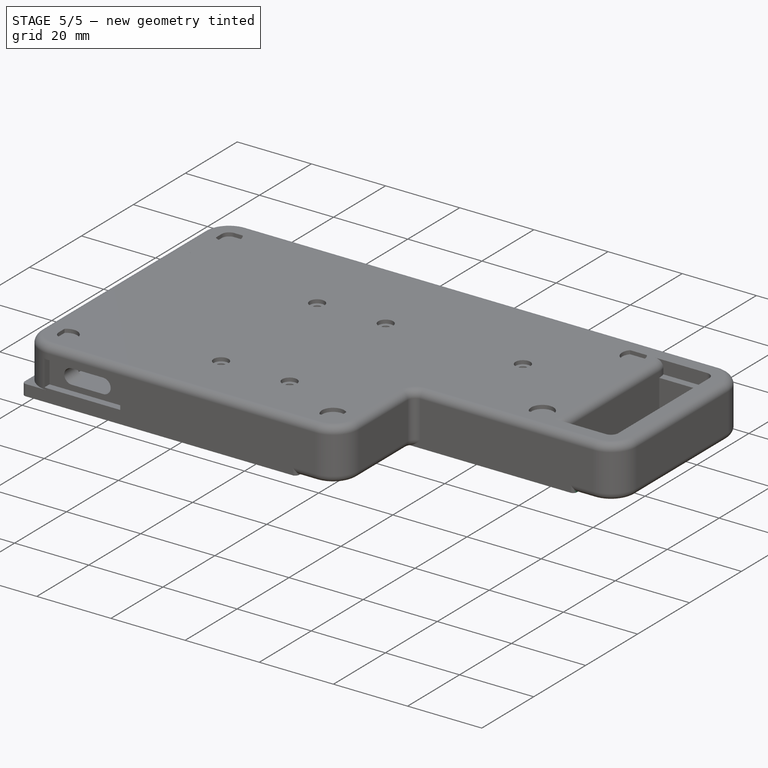
[diagram: stage 5 of 5 — iso view after this stage's code; geometry added in this stage tinted green]
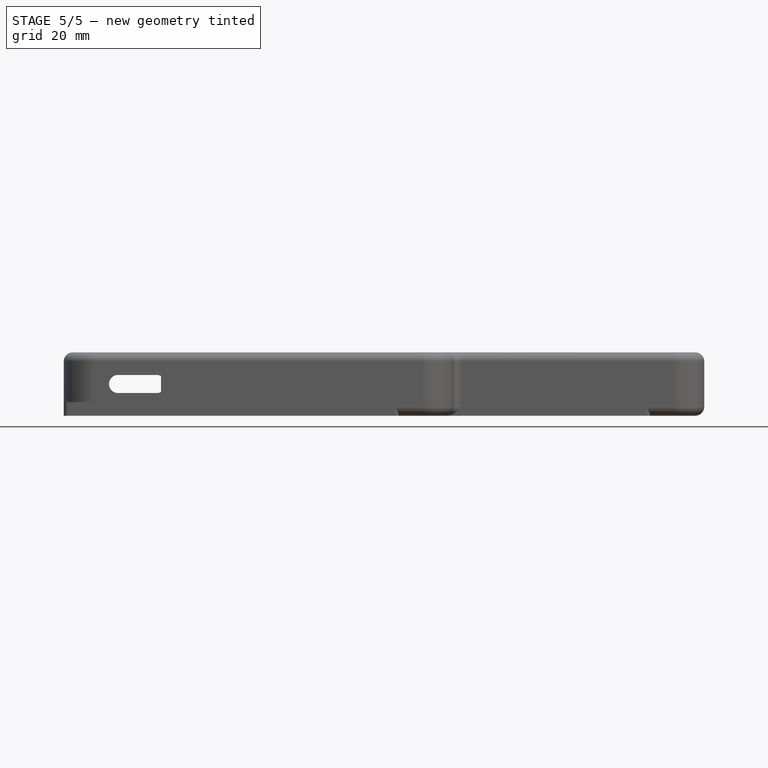
[diagram: stage 5 of 5 — front view after this stage's code; geometry added in this stage tinted green]
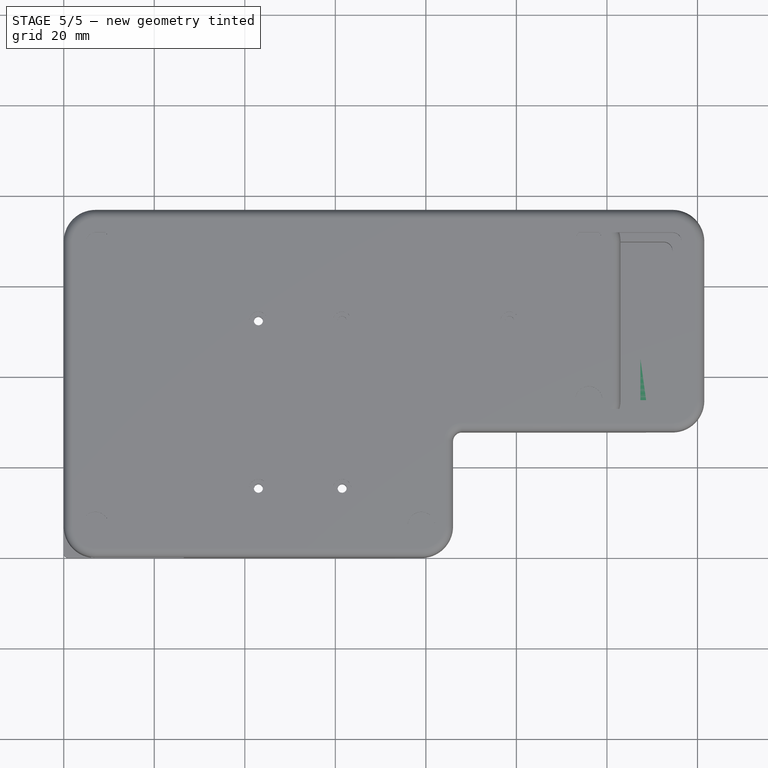
[diagram: stage 5 of 5 — top view after this stage's code; geometry added in this stage tinted green]
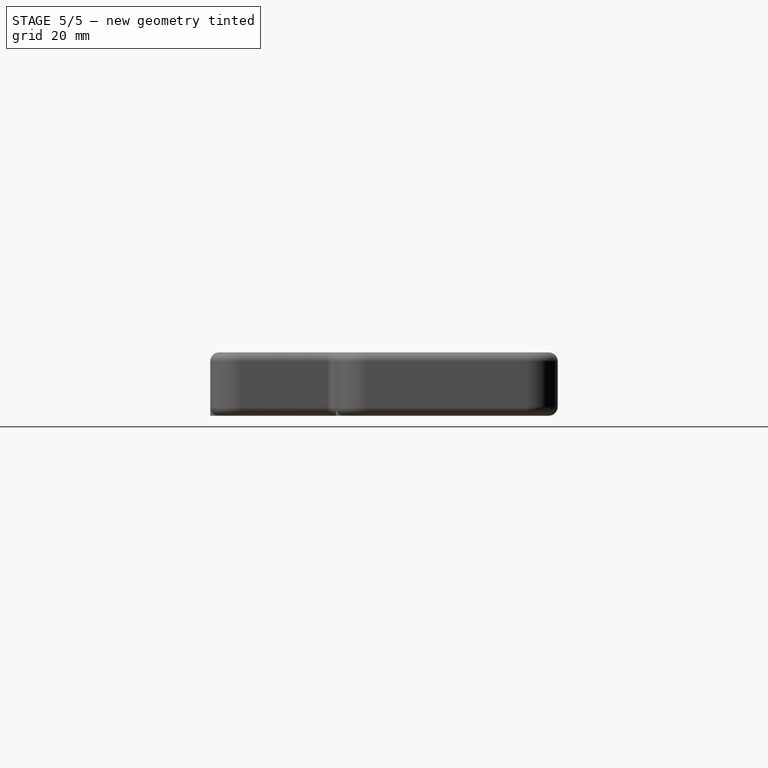
[diagram: stage 5 of 5 — right view after this stage's code; geometry added in this stage tinted green]
FEATURE [Sketcher::SketchObject] Sketch
  FullyConstrained = true
  MapMode = 5
  Support = -> [XY_Plane]
  sketch-geometry (101):
    g0: LineSegment StartX=0 StartY=0 StartZ=0 EndX=74 EndY=0 EndZ=0
    g1: LineSegment StartX=0 StartY=0 StartZ=0 EndX=0 EndY=64.75 EndZ=0
    g2: LineSegment StartX=0 StartY=64.75 StartZ=0 EndX=129.5 EndY=64.75 EndZ=0
    g3: LineSegment StartX=74 StartY=0 StartZ=0 EndX=74 EndY=27.75 EndZ=0
    g4: LineSegment StartX=74 StartY=27.75 StartZ=0 EndX=129.5 EndY=27.75 EndZ=0
    g5: LineSegment StartX=129.5 StartY=27.75 StartZ=0 EndX=129.5 EndY=64.75 EndZ=0
    g6: LineSegment StartX=20.625 StartY=2.125 StartZ=0 EndX=34.875 EndY=2.125 EndZ=0
    g7: LineSegment StartX=34.875 StartY=2.125 StartZ=0 EndX=34.875 EndY=16.375 EndZ=0
    g8: LineSegment StartX=34.875 StartY=16.375 StartZ=0 EndX=20.625 EndY=16.375 EndZ=0
    g9: LineSegment StartX=20.625 StartY=16.375 StartZ=0 EndX=20.625 EndY=2.125 EndZ=0
    g10: LineSegment StartX=39.125 StartY=2.125 StartZ=0 EndX=53.375 EndY=2.125 EndZ=0
    g11: LineSegment StartX=53.375 StartY=2.125 StartZ=0 EndX=53.375 EndY=16.375 EndZ=0
    g12: LineSegment StartX=53.375 StartY=16.375 StartZ=0 EndX=39.125 EndY=16.375 EndZ=0
    g13: LineSegment StartX=39.125 StartY=16.375 StartZ=0 EndX=39.125 EndY=2.125 EndZ=0
    g14: LineSegment StartX=57.625 StartY=2.125 StartZ=0 EndX=71.875 EndY=2.125 EndZ=0
    g15: LineSegment StartX=71.875 StartY=2.125 StartZ=0 EndX=71.875 EndY=16.375 EndZ=0
    g16: LineSegment StartX=71.875 StartY=16.375 StartZ=0 EndX=57.625 EndY=16.375 EndZ=0
    g17: LineSegment StartX=57.625 StartY=16.375 StartZ=0 EndX=57.625 EndY=2.125 EndZ=0
    g18: LineSegment StartX=20.625 StartY=29.875 StartZ=0 EndX=34.875 EndY=29.875 EndZ=0
    g19: LineSegment StartX=34.875 StartY=29.875 StartZ=0 EndX=34.875 EndY=44.125 EndZ=0
    g20: LineSegment StartX=34.875 StartY=44.125 StartZ=0 EndX=20.625 EndY=44.125 EndZ=0
    g21: LineSegment StartX=20.625 StartY=44.125 StartZ=0 EndX=20.625 EndY=29.875 EndZ=0
    g22: LineSegment StartX=39.125 StartY=29.875 StartZ=0 EndX=53.375 EndY=29.875 EndZ=0
    g23: LineSegment StartX=53.375 StartY=29.875 StartZ=0 EndX=53.375 EndY=44.125 EndZ=0
    g24: LineSegment StartX=53.375 StartY=44.125 StartZ=0 EndX=39.125 EndY=44.125 EndZ=0
    g25: LineSegment StartX=39.125 StartY=44.125 StartZ=0 EndX=39.125 EndY=29.875 EndZ=0
    g26: LineSegment StartX=57.625 StartY=29.875 StartZ=0 EndX=71.875 EndY=29.875 EndZ=0
    g27: LineSegment StartX=71.875 StartY=29.875 StartZ=0 EndX=71.875 EndY=44.125 EndZ=0
    g28: LineSegment StartX=71.875 StartY=44.125 StartZ=0 EndX=57.625 EndY=44.125 EndZ=0
    g29: LineSegment StartX=57.625 StartY=44.125 StartZ=0 EndX=57.625 EndY=29.875 EndZ=0
    g30: LineSegment StartX=76.125 StartY=29.875 StartZ=0 EndX=90.375 EndY=29.875 EndZ=0
    g31: LineSegment StartX=90.375 StartY=29.875 StartZ=0 EndX=90.375 EndY=44.125 EndZ=0
    g32: LineSegment StartX=90.375 StartY=44.125 StartZ=0 EndX=76.125 EndY=44.125 EndZ=0
    g33: LineSegment StartX=76.125 StartY=44.125 StartZ=0 EndX=76.125 EndY=29.875 EndZ=0
    g34: LineSegment StartX=113.125 StartY=29.875 StartZ=0 EndX=127.375 EndY=29.875 EndZ=0
    g35: LineSegment StartX=127.375 StartY=29.875 StartZ=0 EndX=127.375 EndY=44.125 EndZ=0
    g36: LineSegment StartX=127.375 StartY=44.125 StartZ=0 EndX=113.125 EndY=44.125 EndZ=0
    g37: LineSegment StartX=113.125 StartY=44.125 StartZ=0 EndX=113.125 EndY=29.875 EndZ=0
    g38: LineSegment StartX=113.125 StartY=48.375 StartZ=0 EndX=127.375 EndY=48.375 EndZ=0
    g39: LineSegment StartX=127.375 StartY=48.375 StartZ=0 EndX=127.375 EndY=62.625 EndZ=0
    g40: LineSegment StartX=127.375 StartY=62.625 StartZ=0 EndX=113.125 EndY=62.625 EndZ=0
    g41: LineSegment StartX=113.125 StartY=62.625 StartZ=0 EndX=113.125 EndY=48.375 EndZ=0
    g42: LineSegment StartX=20.625 StartY=62.625 StartZ=0 EndX=34.875 EndY=62.625 EndZ=0
    g43: LineSegment StartX=34.875 StartY=62.625 StartZ=0 EndX=34.875 EndY=48.375 EndZ=0
    g44: LineSegment StartX=34.875 StartY=48.375 StartZ=0 EndX=20.625 EndY=48.375 EndZ=0
    g45: LineSegment StartX=20.625 StartY=48.375 StartZ=0 EndX=20.625 EndY=62.625 EndZ=0
    g46: LineSegment StartX=39.125 StartY=62.625 StartZ=0 EndX=53.375 EndY=62.625 EndZ=0
    g47: LineSegment StartX=53.375 StartY=62.625 StartZ=0 EndX=53.375 EndY=48.375 EndZ=0
    g48: LineSegment StartX=53.375 StartY=48.375 StartZ=0 EndX=39.125 EndY=48.375 EndZ=0
    g49: LineSegment StartX=39.125 StartY=48.375 StartZ=0 EndX=39.125 EndY=62.625 EndZ=0
    g50: LineSegment StartX=57.625 StartY=62.625 StartZ=0 EndX=71.875 EndY=62.625 EndZ=0
    g51: LineSegment StartX=71.875 StartY=62.625 StartZ=0 EndX=71.875 EndY=48.375 EndZ=0
    g52: LineSegment StartX=71.875 StartY=48.375 StartZ=0 EndX=57.625 EndY=48.375 EndZ=0
    g53: LineSegment StartX=57.625 StartY=48.375 StartZ=0 EndX=57.625 EndY=62.625 EndZ=0
    g54: LineSegment StartX=94.625 StartY=44.125 StartZ=0 EndX=108.875 EndY=44.125 EndZ=0
    g55: LineSegment StartX=108.875 StartY=44.125 StartZ=0 EndX=108.875 EndY=29.875 EndZ=0
    g56: LineSegment StartX=108.875 StartY=29.875 StartZ=0 EndX=94.625 EndY=29.875 EndZ=0
    g57: LineSegment StartX=94.625 StartY=29.875 StartZ=0 EndX=94.625 EndY=44.125 EndZ=0
    g58: LineSegment StartX=76.125 StartY=62.625 StartZ=0 EndX=90.375 EndY=62.625 EndZ=0
    g59: LineSegment StartX=90.375 StartY=62.625 StartZ=0 EndX=90.375 EndY=48.375 EndZ=0
    g60: LineSegment StartX=90.375 StartY=48.375 StartZ=0 EndX=76.125 EndY=48.375 EndZ=0
    g61: LineSegment StartX=76.125 StartY=48.375 StartZ=0 EndX=76.125 EndY=62.625 EndZ=0
    g62: LineSegment StartX=94.625 StartY=62.625 StartZ=0 EndX=108.875 EndY=62.625 EndZ=0
    g63: LineSegment StartX=108.875 StartY=62.625 StartZ=0 EndX=108.875 EndY=48.375 EndZ=0
    g64: LineSegment StartX=108.875 StartY=48.375 StartZ=0 EndX=94.625 EndY=48.375 EndZ=0
    g65: LineSegment StartX=94.625 StartY=48.375 StartZ=0 EndX=94.625 EndY=62.625 EndZ=0
    g66: LineSegment StartX=34.875 StartY=62.625 StartZ=0 EndX=39.125 EndY=62.625 EndZ=0
    g67: LineSegment StartX=53.375 StartY=62.625 StartZ=0 EndX=57.625 EndY=62.625 EndZ=0
    g68: LineSegment StartX=71.875 StartY=62.625 StartZ=0 EndX=76.125 EndY=62.625 EndZ=0
    g69: LineSegment StartX=90.375 StartY=62.625 StartZ=0 EndX=94.625 EndY=62.625 EndZ=0
    g70: LineSegment StartX=108.875 StartY=62.625 StartZ=0 EndX=113.125 EndY=62.625 EndZ=0
    g71: LineSegment StartX=34.875 StartY=44.125 StartZ=0 EndX=39.125 EndY=44.125 EndZ=0
    g72: LineSegment StartX=53.375 StartY=44.125 StartZ=0 EndX=57.625 EndY=44.125 EndZ=0
    g73: LineSegment StartX=71.875 StartY=44.125 StartZ=0 EndX=76.125 EndY=44.125 EndZ=0
    g74: LineSegment StartX=90.375 StartY=44.125 StartZ=0 EndX=94.625 EndY=44.125 EndZ=0
    g75: LineSegment StartX=108.875 StartY=44.125 StartZ=0 EndX=113.125 EndY=44.125 EndZ=0
    g76: LineSegment StartX=34.875 StartY=16.375 StartZ=0 EndX=39.125 EndY=16.375 EndZ=0
    g77: LineSegment StartX=53.375 StartY=16.375 StartZ=0 EndX=57.625 EndY=16.375 EndZ=0
    g78: LineSegment StartX=71.875 StartY=2.125 StartZ=0 EndX=74 EndY=0 EndZ=0
    g79: LineSegment StartX=127.375 StartY=29.875 StartZ=0 EndX=129.5 EndY=27.75 EndZ=0
    g80: LineSegment StartX=127.375 StartY=48.375 StartZ=0 EndX=127.375 EndY=44.125 EndZ=0
    g81: LineSegment StartX=127.375 StartY=62.625 StartZ=0 EndX=129.5 EndY=64.75 EndZ=0
    g82: Circle CenterX=111 CenterY=46.25 CenterZ=0 NormalX=0 NormalY=0 NormalZ=1 AngleXU=0 Radius=1
    g83: Circle CenterX=74 CenterY=46.25 CenterZ=0 NormalX=0 NormalY=0 NormalZ=1 AngleXU=0 Radius=1
    g84: Circle CenterX=37 CenterY=46.25 CenterZ=0 NormalX=0 NormalY=0 NormalZ=1 AngleXU=0 Radius=1
    g85: Circle CenterX=37 CenterY=9.25 CenterZ=0 NormalX=0 NormalY=0 NormalZ=1 AngleXU=0 Radius=1
    g86: Circle CenterX=55.5 CenterY=9.25 CenterZ=0 NormalX=0 NormalY=0 NormalZ=1 AngleXU=0 Radius=1
    g87: LineSegment StartX=37 StartY=46.25 StartZ=0 EndX=39.125 EndY=44.125 EndZ=0
    g88: LineSegment StartX=37 StartY=46.25 StartZ=0 EndX=39.125 EndY=48.375 EndZ=0
    g89: LineSegment StartX=74 StartY=46.25 StartZ=0 EndX=76.125 EndY=44.125 EndZ=0
    g90: LineSegment StartX=111 StartY=46.25 StartZ=0 EndX=113.125 EndY=44.125 EndZ=0
    g91: LineSegment StartX=37 StartY=9.25 StartZ=0 EndX=39.125 EndY=2.125 EndZ=0
    g92: LineSegment StartX=37 StartY=9.25 StartZ=0 EndX=39.125 EndY=16.375 EndZ=0
    g93: LineSegment StartX=37 StartY=9.25 StartZ=0 EndX=34.875 EndY=16.375 EndZ=0
    g94: LineSegment StartX=55.5 StartY=9.25 StartZ=0 EndX=57.625 EndY=2.125 EndZ=0
    g95: LineSegment StartX=55.5 StartY=9.25 StartZ=0 EndX=57.625 EndY=16.375 EndZ=0
    g96: LineSegment StartX=55.5 StartY=9.25 StartZ=0 EndX=53.375 EndY=16.375 EndZ=0
    g97: LineSegment StartX=71.875 StartY=48.375 StartZ=0 EndX=74 EndY=46.25 EndZ=0
    g98: LineSegment StartX=74 StartY=46.25 StartZ=0 EndX=76.125 EndY=48.375 EndZ=0
    g99: LineSegment StartX=111 StartY=46.25 StartZ=0 EndX=113.125 EndY=48.375 EndZ=0
    g100: LineSegment StartX=111 StartY=46.25 StartZ=0 EndX=108.875 EndY=48.375 EndZ=0
  constraints (272):
    c: Coincident(g0,g-1)
    c: PointOnObject(g0,g-1)
    c: Coincident(g1,g0)
    c: PointOnObject(g1,g-2)
    c: Coincident(g2,g1)
    c: Horizontal(g2)
    c: Coincident(g3,g0)
    c: Vertical(g3)
    c: Coincident(g4,g3)
    c: Horizontal(g4)
    c: Coincident(g5,g4)
    c: Coincident(g5,g2)
    c: Vertical(g5)
    c: Coincident(g6,g7)
    c: Coincident(g7,g8)
    c: Coincident(g8,g9)
    c: Coincident(g9,g6)
    c: Horizontal(g6)
    c: Horizontal(g8)
    c: Vertical(g7)
    c: Vertical(g9)
    c: Coincident(g10,g11)
    c: Coincident(g11,g12)
    c: Coincident(g12,g13)
    c: Coincident(g13,g10)
    c: Horizontal(g10)
    c: Horizontal(g12)
    c: Vertical(g11)
    c: Vertical(g13)
    c: Coincident(g14,g15)
    c: Coincident(g15,g16)
    c: Coincident(g16,g17)
    c: Coincident(g17,g14)
    c: Horizontal(g14)
    c: Horizontal(g16)
    c: Vertical(g15)
    c: Vertical(g17)
    c: Coincident(g18,g19)
    c: Coincident(g19,g20)
    c: Coincident(g20,g21)
    c: Coincident(g21,g18)
    c: Horizontal(g18)
    c: Horizontal(g20)
    c: Vertical(g19)
    c: Vertical(g21)
    c: Coincident(g22,g23)
    c: Coincident(g23,g24)
    c: Coincident(g24,g25)
    c: Coincident(g25,g22)
    c: Horizontal(g22)
    c: Horizontal(g24)
    c: Vertical(g23)
    c: Vertical(g25)
    c: Coincident(g26,g27)
    c: Coincident(g27,g28)
    c: Coincident(g28,g29)
    c: Coincident(g29,g26)
    c: Horizontal(g26)
    c: Horizontal(g28)
    c: Vertical(g27)
    c: Vertical(g29)
    c: Coincident(g30,g31)
    c: Coincident(g31,g32)
    c: Coincident(g32,g33)
    c: Coincident(g33,g30)
    c: Horizontal(g30)
    c: Horizontal(g32)
    c: Vertical(g31)
    c: Vertical(g33)
    c: Coincident(g34,g35)
    c: Coincident(g35,g36)
    c: Coincident(g36,g37)
    c: Coincident(g37,g34)
    c: Horizontal(g34)
    c: Horizontal(g36)
    c: Vertical(g35)
    c: Vertical(g37)
    c: Coincident(g38,g39)
    c: Coincident(g39,g40)
    c: Coincident(g40,g41)
    c: Coincident(g41,g38)
    c: Horizontal(g38)
    c: Horizontal(g40)
    c: Vertical(g39)
    c: Vertical(g41)
    c: Coincident(g42,g43)
    c: Coincident(g43,g44)
    c: Coincident(g44,g45)
    c: Coincident(g45,g42)
    c: Horizontal(g42)
    c: Horizontal(g44)
    c: Vertical(g43)
    c: Vertical(g45)
    c: Coincident(g46,g47)
    c: Coincident(g47,g48)
    c: Coincident(g48,g49)
    c: Coincident(g49,g46)
    c: Horizontal(g46)
    c: Horizontal(g48)
    c: Vertical(g47)
    c: Vertical(g49)
    c: Coincident(g50,g51)
    c: Coincident(g51,g52)
    c: Coincident(g52,g53)
    c: Coincident(g53,g50)
    c: Horizontal(g50)
    c: Horizontal(g52)
    c: Vertical(g51)
    c: Vertical(g53)
    c: Coincident(g54,g55)
    c: Coincident(g55,g56)
    c: Coincident(g56,g57)
    c: Coincident(g57,g54)
    c: Horizontal(g54)
    c: Horizontal(g56)
    c: Vertical(g55)
    c: Vertical(g57)
    c: Coincident(g58,g59)
    c: Coincident(g59,g60)
    c: Coincident(g60,g61)
    c: Coincident(g61,g58)
    c: Horizontal(g58)
    c: Horizontal(g60)
    c: Vertical(g59)
    c: Vertical(g61)
    c: Coincident(g62,g63)
    c: Coincident(g63,g64)
    c: Coincident(g64,g65)
    c: Coincident(g65,g62)
    c: Horizontal(g62)
    c: Horizontal(g64)
    c: Vertical(g63)
    c: Vertical(g65)
    c: Equal(g45,g42)
    c: Equal(g42,g21)
    c: Equal(g21,g20)
    c: Equal(g20,g9)
    c: Equal(g9,g8)
    c: Equal(g8,g13)
    c: Equal(g13,g12)
    c: Equal(g12,g25)
    c: Equal(g25,g24)
    c: Equal(g24,g49)
    c: Equal(g49,g46)
    c: Equal(g46,g53)
    c: Equal(g53,g50)
    c: Equal(g50,g29)
    c: Equal(g29,g28)
    c: Equal(g28,g17)
    c: Equal(g17,g16)
    c: Equal(g16,g33)
    c: Equal(g33,g32)
    c: Equal(g32,g57)
    c: Equal(g57,g54)
    c: Equal(g54,g61)
    c: Equal(g61,g58)
    c: Equal(g58,g37)
    c: Equal(g37,g36)
    c: Equal(g36,g41)
    c: Equal(g41,g40)
    c: Equal(g40,g65)
    c: Equal(g65,g62)
    c: DistanceX(g6,g6) = 14.25
    c: DistanceY(g1,g1) = 64.75
    c: DistanceY(g3,g3) = 27.75
    c: DistanceX(g4,g4) = 55.5
    c: Horizontal(g42,g46)
    c: Horizontal(g46,g50)
    c: Horizontal(g50,g58)
    c: Horizontal(g58,g62)
    c: Horizontal(g62,g40)
    c: Horizontal(g20,g24)
    c: Horizontal(g24,g28)
    c: Horizontal(g28,g32)
    c: Horizontal(g32,g54)
    c: Horizontal(g54,g36)
    c: Horizontal(g8,g12)
    c: Horizontal(g12,g16)
    c: Coincident(g66,g42)
    c: Coincident(g66,g46)
    c: Coincident(g67,g46)
    c: Coincident(g67,g50)
    c: Coincident(g68,g50)
    c: Coincident(g68,g58)
    c: Coincident(g69,g58)
    c: Coincident(g69,g62)
    c: Coincident(g70,g62)
    c: Coincident(g70,g40)
    c: Coincident(g71,g19)
    c: Coincident(g71,g24)
    c: Coincident(g72,g23)
    c: Coincident(g72,g28)
    c: Coincident(g73,g27)
    c: Coincident(g73,g32)
    c: Coincident(g74,g31)
    c: Coincident(g74,g54)
    c: Coincident(g75,g54)
    c: Coincident(g75,g36)
    c: Coincident(g76,g7)
    c: Coincident(g76,g12)
    c: Coincident(g77,g11)
    c: Coincident(g77,g16)
    c: Equal(g76,g77)
    c: Equal(g77,g71)
    c: Equal(g71,g72)
    c: Equal(g72,g73)
    c: Equal(g73,g74)
    c: Equal(g74,g75)
    c: Equal(g75,g70)
    c: Equal(g70,g69)
    c: Equal(g69,g68)
    c: Equal(g68,g67)
    c: Equal(g67,g66)
    c: DistanceX(g76,g76) = 4.25
    c: Coincident(g78,g14)
    c: Coincident(g78,g0)
    c: Coincident(g79,g34)
    c: Coincident(g79,g4)
    c: Vertical(g42,g20)
    c: Coincident(g80,g38)
    c: Coincident(g80,g35)
    c: Equal(g80,g75)
    c: Coincident(g81,g39)
    c: Coincident(g81,g2)
    c: Equal(g81,g79)
    c: Equal(g79,g78)
    c: Angle(g78,g0) = 0.785398
    c: Angle(g79,g4) = 0.785398
    c: DistanceX(g2,g2) = 129.5
    c: Radius(g85) = 1
    c: Equal(g84,g85)
    c: Equal(g85,g86)
    c: Equal(g86,g82)
    c: Equal(g82,g83)
    c: Coincident(g87,g84)
    c: Coincident(g87,g24)
    c: Coincident(g88,g84)
    c: Coincident(g88,g48)
    c: Coincident(g89,g83)
    c: Coincident(g89,g32)
    c: Coincident(g90,g82)
    c: Coincident(g90,g36)
    c: Coincident(g91,g85)
    c: Coincident(g91,g10)
    c: Coincident(g92,g85)
    c: Coincident(g92,g12)
    c: Coincident(g93,g85)
    c: Coincident(g93,g7)
    c: Coincident(g94,g86)
    c: Coincident(g94,g14)
    c: Coincident(g95,g86)
    c: Coincident(g95,g16)
    c: Coincident(g96,g86)
    c: Coincident(g96,g11)
    c: Equal(g93,g92)
    c: Equal(g92,g91)
    c: Equal(g91,g96)
    c: Equal(g96,g95)
    c: Equal(g87,g88)
    c: Equal(g88,g89)
    c: Equal(g89,g90)
    c: Coincident(g97,g51)
    c: Coincident(g97,g83)
    c: Coincident(g98,g83)
    c: Coincident(g98,g60)
    c: Coincident(g99,g82)
    c: Coincident(g99,g38)
    c: Coincident(g100,g82)
    c: Coincident(g100,g63)
    c: Equal(g99,g100)
    c: Equal(g100,g90)
    c: Equal(g90,g98)
FEATURE [PartDesign::Pad] Pad
  Direction = (1,1,1)
  Length = 3
  Length2 = 100
  Profile = -> Sketch
  Type = 0
FEATURE [Sketcher::SketchObject] Sketch002
  ExternalGeometry = -> [Pad]
  FullyConstrained = true
  MapMode = 5
  Placement = pos=(0,0,3) rot=(0,0,1;0rad)
  Support = -> [Pad]
  sketch-geometry (5):
    g0: Circle CenterX=37 CenterY=46.25 CenterZ=0 NormalX=0 NormalY=0 NormalZ=1 AngleXU=0 Radius=2
    g1: Circle CenterX=74 CenterY=46.25 CenterZ=0 NormalX=0 NormalY=0 NormalZ=1 AngleXU=0 Radius=2
    g2: Circle CenterX=111 CenterY=46.25 CenterZ=0 NormalX=0 NormalY=0 NormalZ=1 AngleXU=0 Radius=2
    g3: Circle CenterX=55.5 CenterY=9.25 CenterZ=0 NormalX=0 NormalY=0 NormalZ=1 AngleXU=0 Radius=2
    g4: Circle CenterX=37 CenterY=9.25 CenterZ=0 NormalX=0 NormalY=0 NormalZ=1 AngleXU=0 Radius=2
  constraints (10):
    c: Coincident(g0,g-3)
    c: Coincident(g1,g-4)
    c: Coincident(g2,g-5)
    c: Coincident(g3,g-7)
    c: Coincident(g4,g-6)
    c: Equal(g4,g0)
    c: Equal(g0,g3)
    c: Equal(g3,g1)
    c: Equal(g1,g2)
    c: Radius(g4) = 2
FEATURE [PartDesign::Pocket] Pocket
  BaseFeature = -> Pad
  Length = 1
  Length2 = 100
  Profile = -> Sketch002
  Type = 0
FEATURE [PartDesign::Fillet] Fillet
  Base = -> Pocket [Edge2,Edge8,Edge148,Edge147,Edge1,Edge5]
  BaseFeature = -> Pocket
  Radius = 1
  SupportTransform = false
FEATURE [PartDesign::Body] Body  label="Right_plate"
  Group = -> [Sketch,Pad,Sketch002,Pocket,Fillet]
  Origin = -> Origin
  Placement = pos=(6,6,11) rot=(0,0,1;0rad)
  Tip = -> Fillet
FEATURE [PartDesign::Fillet] Fillet001
  Base = -> Pad001 [Edge1,Edge2,Edge5,Edge8,Edge11,Edge14]
  BaseFeature = -> Pad001
  Radius = 1
  SupportTransform = false
FEATURE [Sketcher::SketchObject] Sketch003
  ExternalGeometry = -> [Fillet001]
  FullyConstrained = true
  MapMode = 5
  Placement = pos=(0,0,0) rot=(1,0,0;3.14159rad)
  Support = -> [Fillet001]
  sketch-geometry (5):
    g0: Circle CenterX=37 CenterY=-46.25 CenterZ=0 NormalX=0 NormalY=0 NormalZ=1 AngleXU=0 Radius=2
    g1: Circle CenterX=55.5 CenterY=-46.25 CenterZ=0 NormalX=0 NormalY=0 NormalZ=1 AngleXU=0 Radius=2
    g2: Circle CenterX=92.5 CenterY=-46.25 CenterZ=0 NormalX=0 NormalY=0 NormalZ=1 AngleXU=0 Radius=2
    g3: Circle CenterX=55.5 CenterY=-9.25 CenterZ=0 NormalX=0 NormalY=0 NormalZ=1 AngleXU=0 Radius=2
    g4: Circle CenterX=37 CenterY=-9.25 CenterZ=0 NormalX=0 NormalY=0 NormalZ=1 AngleXU=0 Radius=2
  constraints (10):
    c: Coincident(g0,g-5)
    c: Coincident(g1,g-6)
    c: Coincident(g2,g-7)
    c: Coincident(g3,g-4)
    c: Coincident(g4,g-3)
    c: Equal(g4,g3)
    c: Equal(g3,g0)
    c: Equal(g0,g1)
    c: Equal(g1,g2)
    c: Radius(g0) = 2
FEATURE [PartDesign::Pocket] Pocket001
  BaseFeature = -> Fillet001
  Length = 1
  Length2 = 100
  Profile = -> Sketch003
  Type = 0
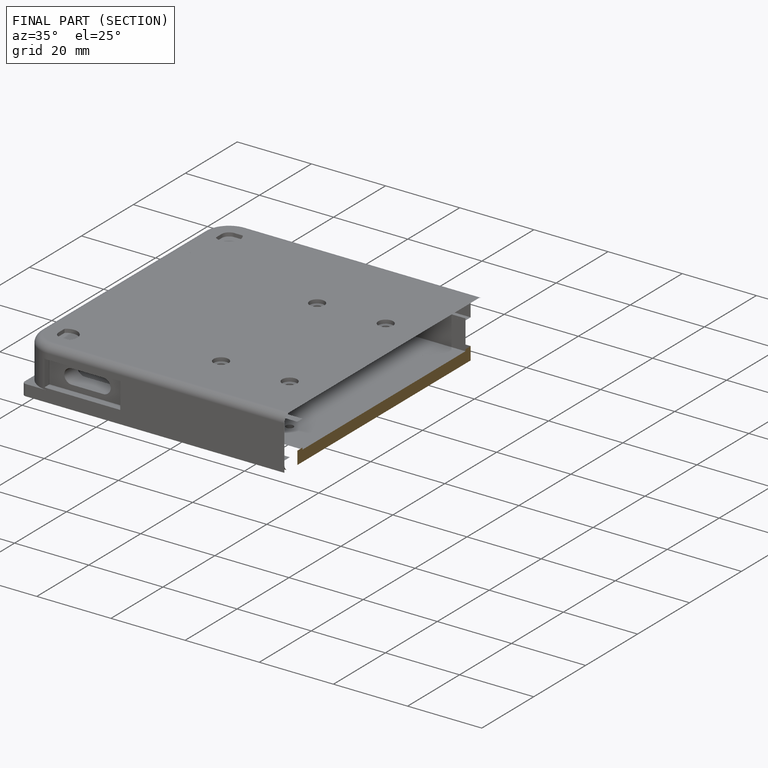
[diagram: finished part — half-section view (interior)]
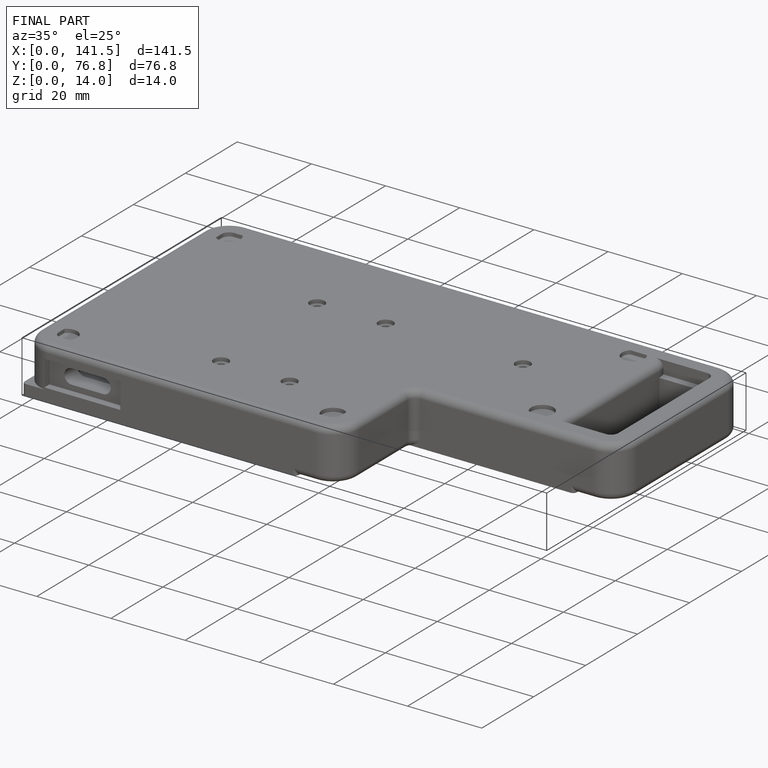
[diagram: finished part — iso view with bounding-box wireframe]
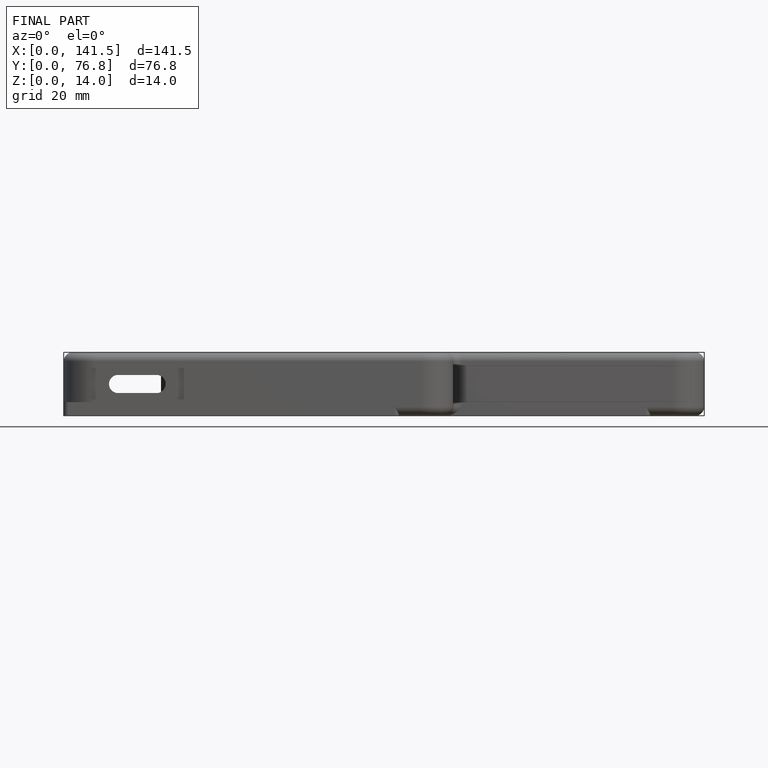
[diagram: finished part — front view with bounding-box wireframe]
